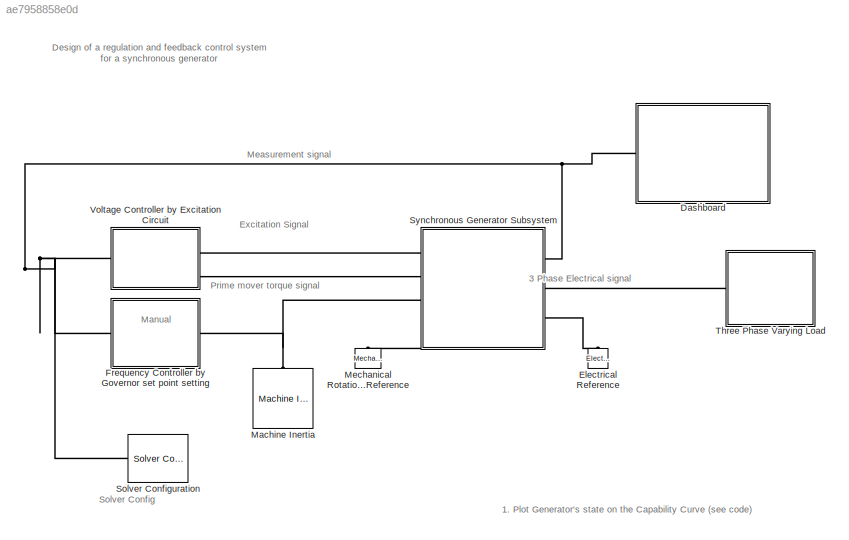
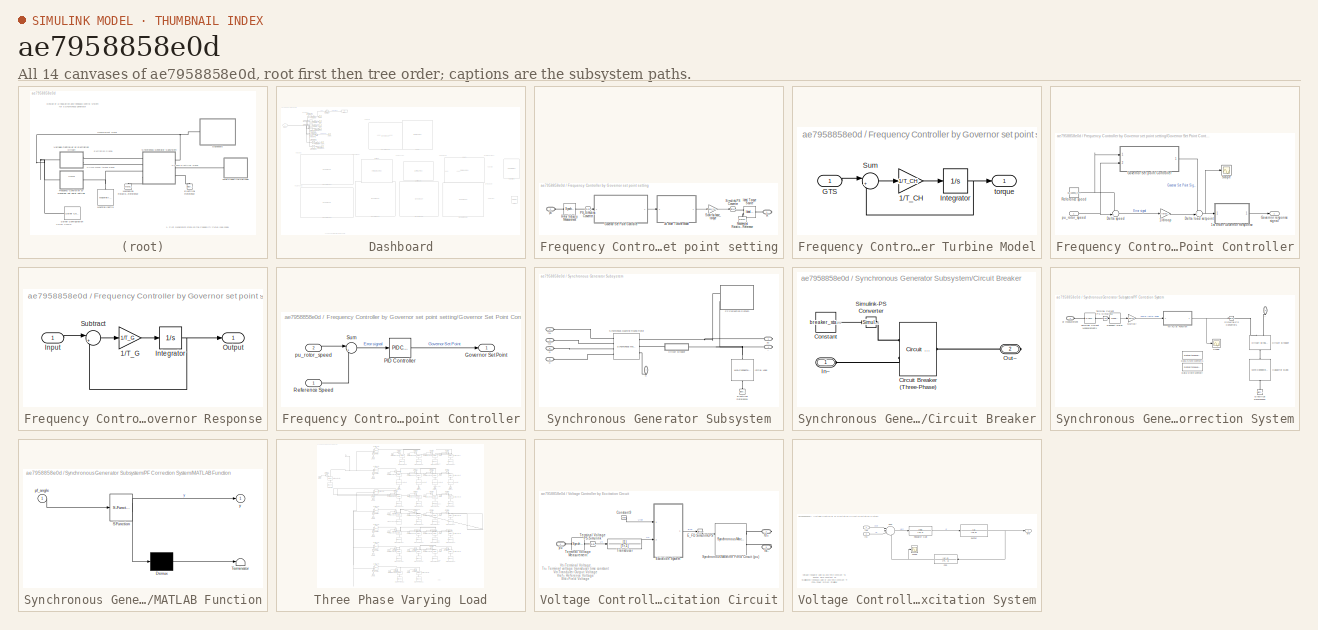
[diagram: thumbnail index - all 14 canvases of the model, root first then tree order]
MODEL slx_ae7958858e0d
KIND model
CONFIG AbsTol = auto
CONFIG EnableMultiTasking = off
CONFIG FixedStep = auto
CONFIG MaxStep = auto
CONFIG MinStep = auto
CONFIG RelTol = 1e-3
CONFIG SampleTimeConstraint = Unconstrained
CONFIG Solver = VariableStepAuto
CONFIG SolverName = VariableStepAuto
CONFIG StartTime = 0.0
CONFIG StopTime = 15
WORKSPACE source: mxarray member
WORKSPACE breaker_state: Simulink.Parameter (value not decoded)
WORKSPACE cap_state: Simulink.Parameter (value not decoded)
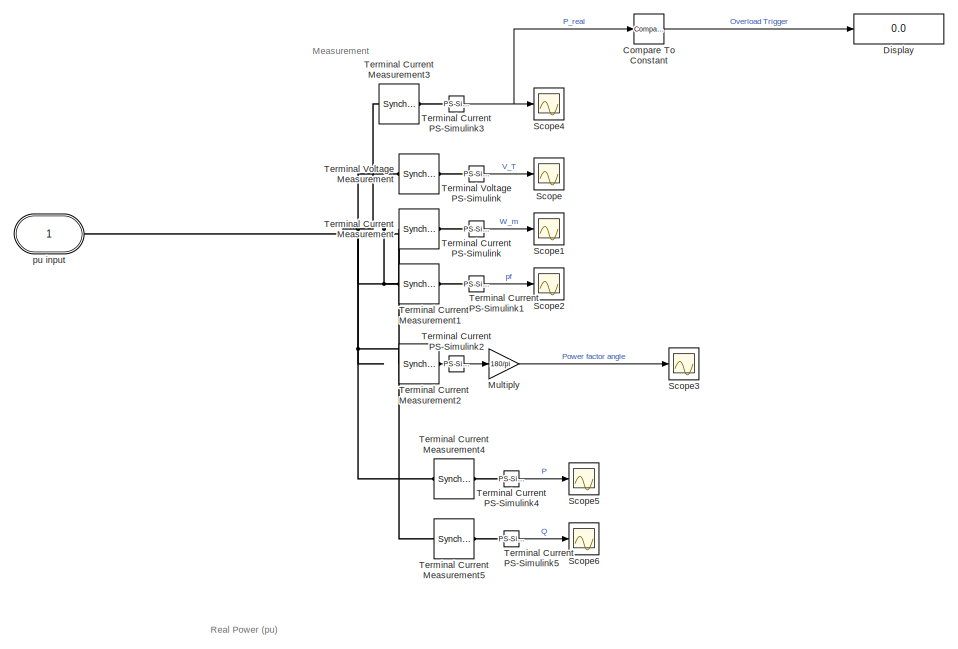
[diagram: Dashboard - part 1/6, top left region]
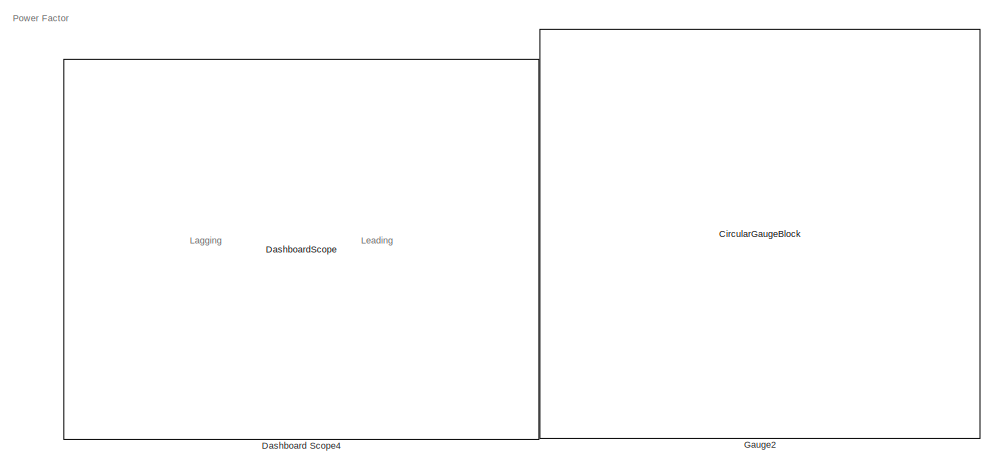
[diagram: Dashboard - part 2/6, top center region]
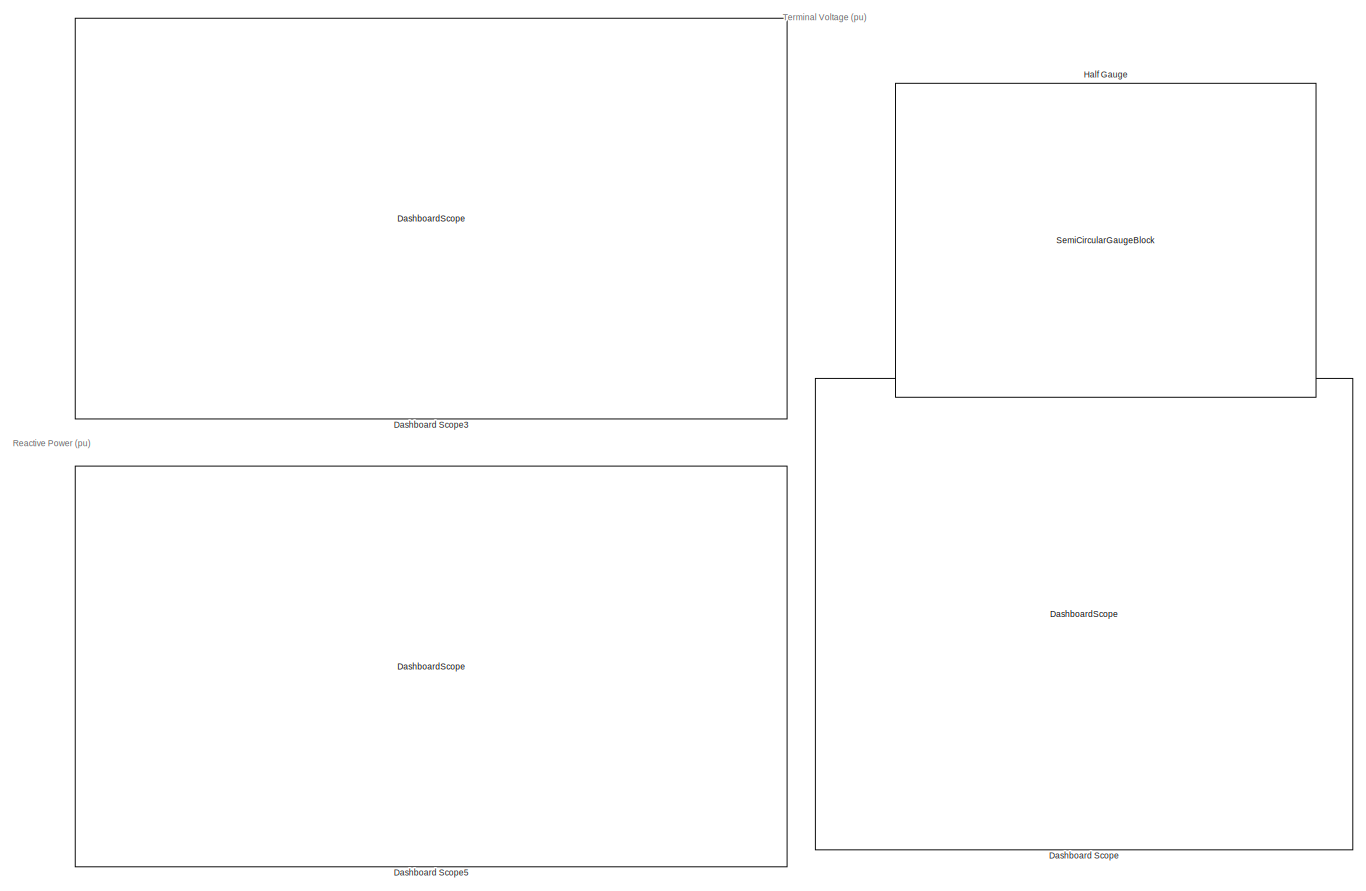
[diagram: Dashboard - part 3/6, middle left region]
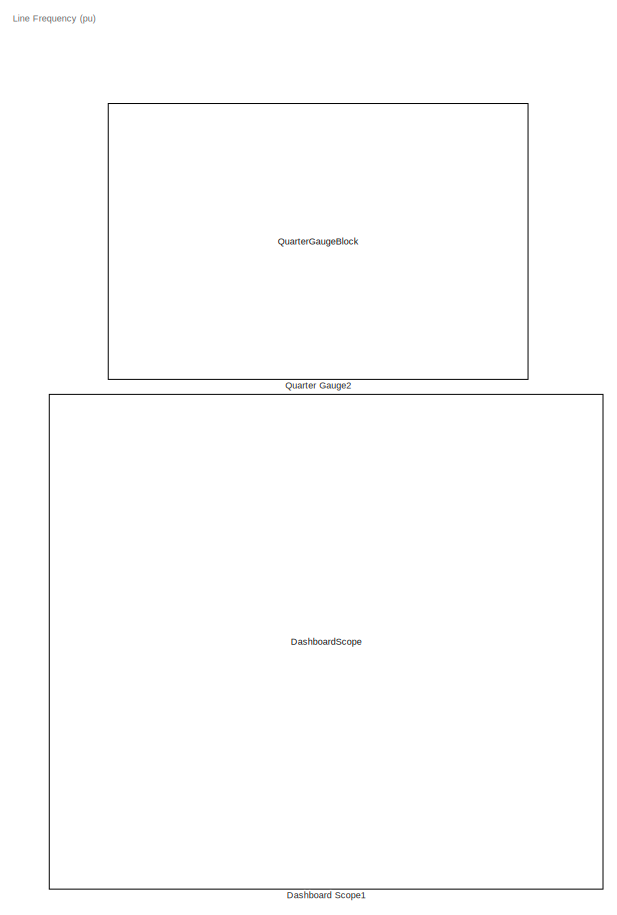
[diagram: Dashboard - part 4/6, central region]
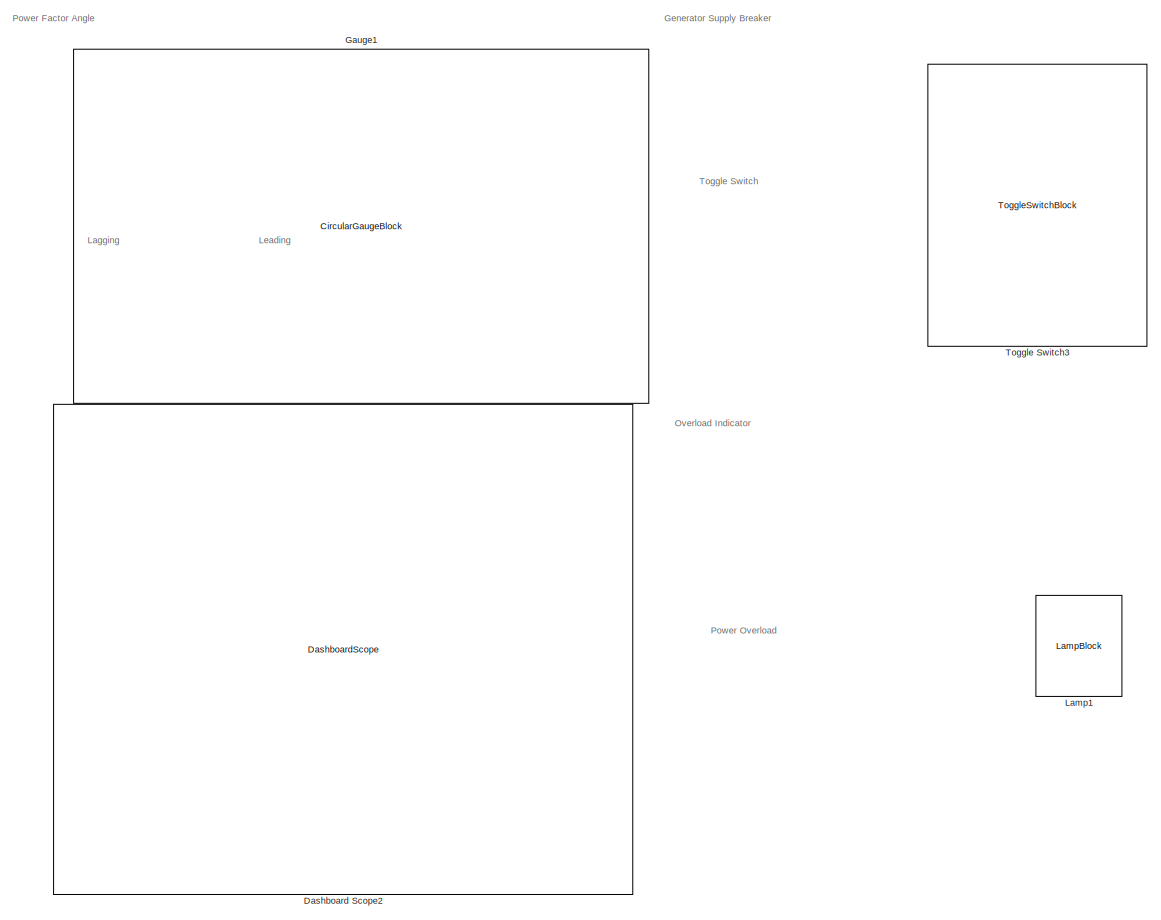
[diagram: Dashboard - part 5/6, middle right region]
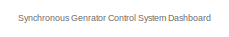
[diagram: Dashboard - part 6/6, bottom left region]
BLOCK [SubSystem] Dashboard
  Ports = [0, 0, 0, 0, 0, 1]
  RequestExecContextInheritance = off
BLOCK [Reference] Dashboard/Compare To Constant  REF=simulink/Logic and Bit
Operations/Compare
To Constant
  Ports = [1, 1]
  SourceBlock = simulink/Logic and Bit\nOperations/Compare\nTo Constant
  SourceProductBaseCode = SL
  SourceType = Compare To Constant
BLOCK [DashboardScope] Dashboard/Dashboard Scope
  LegendPosition = Hide
  ScaleAtStop = off
  Ymax = 2
  Ymin = 0
BLOCK [DashboardScope] Dashboard/Dashboard Scope1
  LegendPosition = Hide
  ScaleAtStop = off
  Ymax = 1.1
  Ymin = .9
BLOCK [DashboardScope] Dashboard/Dashboard Scope2
  LegendPosition = Hide
  ScaleAtStop = off
  Ymax = 90
  Ymin = -90
BLOCK [DashboardScope] Dashboard/Dashboard Scope3
  ScaleAtStop = off
  Ymax = 2
  Ymin = 0
BLOCK [DashboardScope] Dashboard/Dashboard Scope4
  LegendPosition = Hide
  ScaleAtStop = off
  Ymax = 1.2
  Ymin = 0
BLOCK [DashboardScope] Dashboard/Dashboard Scope5
  ScaleAtStop = off
  Ymax = 2
  Ymin = -2
BLOCK [Display] Dashboard/Display
  Decimation = 1
  Ports = [1]
BLOCK [CircularGaugeBlock] Dashboard/Gauge1
  LabelPosition = Hide
  ScaleMax = 90
  ScaleMin = -90
  TickInterval = 20
BLOCK [CircularGaugeBlock] Dashboard/Gauge2
  LabelPosition = Hide
  ScaleMax = 1
  TickInterval = 0.1
BLOCK [SemiCircularGaugeBlock] Dashboard/Half Gauge
  ScaleMax = 1.3
  ScaleMin = .5
  TickInterval = 0.1
BLOCK [LampBlock] Dashboard/Lamp1
  LabelPosition = Hide
BLOCK [Gain] Dashboard/Multiply
  Gain = 180/pi
BLOCK [QuarterGaugeBlock] Dashboard/Quarter Gauge2
  ScaleMax = 1.2
  ScaleMin = .8
  TickInterval = .1
BLOCK [Scope] Dashboard/Scope
  Floating = off
  NumInputPorts = 1
  Ports = [1]
  ScopeSpecificationString = Simulink.scopes.TimeScopeBlockCfg('CurrentConfiguration', extmgr.ConfigurationSet(extmgr.Configuration('Core','General UI',true),extmgr.Configuration('Core','Source UI',true),extmgr.Configuration('Sources','WiredSimulink',true,'DataLoggingVariableName','ScopeData7'),extmgr.Configuration('Visuals','Time Domain',true,'SerializedDisplays',{struct('MinYLimReal','0','MaxYLimReal','2','YLabelReal','','M...<+1404ch>
BLOCK [Scope] Dashboard/Scope1
  Floating = off
  NumInputPorts = 1
  Ports = [1]
  ScopeSpecificationString = Simulink.scopes.TimeScopeBlockCfg('CurrentConfiguration', extmgr.ConfigurationSet(extmgr.Configuration('Core','General UI',true),extmgr.Configuration('Core','Source UI',true),extmgr.Configuration('Sources','WiredSimulink',true,'DataLoggingVariableName','ScopeData8'),extmgr.Configuration('Visuals','Time Domain',true,'SerializedDisplays',{struct('MinYLimReal','0.94175','MaxYLimReal','1.02272','YLabe...<+1437ch>
BLOCK [Scope] Dashboard/Scope2
  Floating = off
  NumInputPorts = 1
  Ports = [1]
  ScopeSpecificationString = Simulink.scopes.TimeScopeBlockCfg('CurrentConfiguration', extmgr.ConfigurationSet(extmgr.Configuration('Core','General UI',true),extmgr.Configuration('Core','Source UI',true),extmgr.Configuration('Sources','WiredSimulink',true,'DataLoggingVariableName','ScopeData9'),extmgr.Configuration('Visuals','Time Domain',true,'SerializedDisplays',{struct('MinYLimReal','-1.14604','MaxYLimReal','1.23845','YLab...<+1766ch>
BLOCK [Scope] Dashboard/Scope3
  Floating = off
  NumInputPorts = 1
  Ports = [1]
  ScopeSpecificationString = Simulink.scopes.TimeScopeBlockCfg('CurrentConfiguration', extmgr.ConfigurationSet(extmgr.Configuration('Core','General UI',true),extmgr.Configuration('Core','Source UI',true),extmgr.Configuration('Sources','WiredSimulink',true,'DataLoggingVariableName','ScopeData10'),extmgr.Configuration('Visuals','Time Domain',true,'SerializedDisplays',{struct('MinYLimReal','-50.31945','MaxYLimReal','85.57606','Y...<+1792ch>
BLOCK [Scope] Dashboard/Scope4
  Floating = off
  NumInputPorts = 1
  Ports = [1]
  ScopeSpecificationString = Simulink.scopes.TimeScopeBlockCfg('CurrentConfiguration', extmgr.ConfigurationSet(extmgr.Configuration('Core','General UI',true),extmgr.Configuration('Core','Source UI',true),extmgr.Configuration('Sources','WiredSimulink',true,'DataLoggingVariableName','ScopeData11'),extmgr.Configuration('Visuals','Time Domain',true,'SerializedDisplays',{struct('MinYLimReal','-1.14942','MaxYLimReal','1.28712','YLa...<+1443ch>
BLOCK [Scope] Dashboard/Scope5
  Floating = off
  NumInputPorts = 1
  Ports = [1]
  ScopeSpecificationString = Simulink.scopes.TimeScopeBlockCfg('CurrentConfiguration', extmgr.ConfigurationSet(extmgr.Configuration('Core','General UI',true),extmgr.Configuration('Core','Source UI',true),extmgr.Configuration('Sources','WiredSimulink',true,'DataLoggingVariableName','ScopeData1'),extmgr.Configuration('Visuals','Time Domain',true,'SerializedDisplays',{struct('MinYLimReal','-1.14604','MaxYLimReal','1.23845','YLab...<+1766ch>
BLOCK [Scope] Dashboard/Scope6
  Floating = off
  NumInputPorts = 1
  Ports = [1]
  ScopeSpecificationString = Simulink.scopes.TimeScopeBlockCfg('CurrentConfiguration', extmgr.ConfigurationSet(extmgr.Configuration('Core','General UI',true),extmgr.Configuration('Core','Source UI',true),extmgr.Configuration('Sources','WiredSimulink',true,'DataLoggingVariableName','ScopeData2'),extmgr.Configuration('Visuals','Time Domain',true,'SerializedDisplays',{struct('MinYLimReal','-1.14604','MaxYLimReal','1.23845','YLab...<+1738ch>
BLOCK [Reference] Dashboard/Terminal Current Measurement  REF=ee_lib/Electromechanical/Synchronous/Synchronous Machine
Measurement
  Ports = [0, 0, 0, 0, 0, 1, 1]
  SourceBlock = ee_lib/Electromechanical/Synchronous/Synchronous Machine\nMeasurement
  SourceProductBaseCode = PS
  SourceType = Synchronous Machine\nMeasurement
BLOCK [Reference] Dashboard/Terminal Current Measurement1  REF=ee_lib/Electromechanical/Synchronous/Synchronous Machine
Measurement
  Ports = [0, 0, 0, 0, 0, 1, 1]
  SourceBlock = ee_lib/Electromechanical/Synchronous/Synchronous Machine\nMeasurement
  SourceProductBaseCode = PS
  SourceType = Synchronous Machine\nMeasurement
BLOCK [Reference] Dashboard/Terminal Current Measurement2  REF=ee_lib/Electromechanical/Synchronous/Synchronous Machine
Measurement
  Ports = [0, 0, 0, 0, 0, 1, 1]
  SourceBlock = ee_lib/Electromechanical/Synchronous/Synchronous Machine\nMeasurement
  SourceProductBaseCode = PS
  SourceType = Synchronous Machine\nMeasurement
BLOCK [Reference] Dashboard/Terminal Current Measurement3  REF=ee_lib/Electromechanical/Synchronous/Synchronous Machine
Measurement
  Ports = [0, 0, 0, 0, 0, 1, 1]
  SourceBlock = ee_lib/Electromechanical/Synchronous/Synchronous Machine\nMeasurement
  SourceProductBaseCode = PS
  SourceType = Synchronous Machine\nMeasurement
BLOCK [Reference] Dashboard/Terminal Current Measurement4  REF=ee_lib/Electromechanical/Synchronous/Synchronous Machine
Measurement
  Ports = [0, 0, 0, 0, 0, 1, 1]
  SourceBlock = ee_lib/Electromechanical/Synchronous/Synchronous Machine\nMeasurement
  SourceProductBaseCode = PS
  SourceType = Synchronous Machine\nMeasurement
BLOCK [Reference] Dashboard/Terminal Current Measurement5  REF=ee_lib/Electromechanical/Synchronous/Synchronous Machine
Measurement
  Ports = [0, 0, 0, 0, 0, 1, 1]
  SourceBlock = ee_lib/Electromechanical/Synchronous/Synchronous Machine\nMeasurement
  SourceProductBaseCode = PS
  SourceType = Synchronous Machine\nMeasurement
BLOCK [Reference] Dashboard/Terminal Current PS-Simulink  REF=nesl_utility/PS-Simulink
Converter
  Ports = [0, 1, 0, 0, 0, 1]
  SourceBlock = nesl_utility/PS-Simulink\nConverter
  SourceProductBaseCode = MT,SS
  SourceType = PS-Simulink\nConverter
BLOCK [Reference] Dashboard/Terminal Current PS-Simulink1  REF=nesl_utility/PS-Simulink
Converter
  Ports = [0, 1, 0, 0, 0, 1]
  SourceBlock = nesl_utility/PS-Simulink\nConverter
  SourceProductBaseCode = MT,SS
  SourceType = PS-Simulink\nConverter
BLOCK [Reference] Dashboard/Terminal Current PS-Simulink2  REF=nesl_utility/PS-Simulink
Converter
  Ports = [0, 1, 0, 0, 0, 1]
  SourceBlock = nesl_utility/PS-Simulink\nConverter
  SourceProductBaseCode = MT,SS
  SourceType = PS-Simulink\nConverter
BLOCK [Reference] Dashboard/Terminal Current PS-Simulink3  REF=nesl_utility/PS-Simulink
Converter
  Ports = [0, 1, 0, 0, 0, 1]
  SourceBlock = nesl_utility/PS-Simulink\nConverter
  SourceProductBaseCode = MT,SS
  SourceType = PS-Simulink\nConverter
BLOCK [Reference] Dashboard/Terminal Current PS-Simulink4  REF=nesl_utility/PS-Simulink
Converter
  Ports = [0, 1, 0, 0, 0, 1]
  SourceBlock = nesl_utility/PS-Simulink\nConverter
  SourceProductBaseCode = MT,SS
  SourceType = PS-Simulink\nConverter
BLOCK [Reference] Dashboard/Terminal Current PS-Simulink5  REF=nesl_utility/PS-Simulink
Converter
  Ports = [0, 1, 0, 0, 0, 1]
  SourceBlock = nesl_utility/PS-Simulink\nConverter
  SourceProductBaseCode = MT,SS
  SourceType = PS-Simulink\nConverter
BLOCK [Reference] Dashboard/Terminal Voltage Measurement  REF=ee_lib/Electromechanical/Synchronous/Synchronous Machine
Measurement
  Ports = [0, 0, 0, 0, 0, 1, 1]
  SourceBlock = ee_lib/Electromechanical/Synchronous/Synchronous Machine\nMeasurement
  SourceProductBaseCode = PS
  SourceType = Synchronous Machine\nMeasurement
BLOCK [Reference] Dashboard/Terminal Voltage PS-Simulink  REF=nesl_utility/PS-Simulink
Converter
  Ports = [0, 1, 0, 0, 0, 1]
  SourceBlock = nesl_utility/PS-Simulink\nConverter
  SourceProductBaseCode = MT,SS
  SourceType = PS-Simulink\nConverter
BLOCK [ToggleSwitchBlock] Dashboard/Toggle Switch3
  LabelPosition = Hide
BLOCK [PMIOPort] Dashboard/pu input
  Side = Left
BLOCK [Reference] Electrical Reference  REF=fl_lib/Electrical/Electrical Elements/Electrical Reference
  NameLocation = right
  Ports = [0, 0, 0, 0, 0, 1]
  SourceBlock = fl_lib/Electrical/Electrical Elements/Electrical Reference
  SourceProductBaseCode = MT,SS
  SourceType = Electrical Reference
BLOCK [SubSystem] Frequency Controller by Governor set point setting
  Ports = [0, 0, 0, 0, 0, 1, 1]
  RequestExecContextInheritance = off
BLOCK [SubSystem] Frequency Controller by Governor set point setting/1st order Turbine Model
  Ports = [1, 1]
  RequestExecContextInheritance = off
BLOCK [Gain] Frequency Controller by Governor set point setting/1st order Turbine Model/1//T_CH
  Gain = 1/T_CH
BLOCK [Inport] Frequency Controller by Governor set point setting/1st order Turbine Model/GTS
BLOCK [Integrator] Frequency Controller by Governor set point setting/1st order Turbine Model/Integrator
  InitialCondition = pu_torque0
  Ports = [1, 1]
BLOCK [Sum] Frequency Controller by Governor set point setting/1st order Turbine Model/Sum
  Inputs = |+-
  Ports = [2, 1]
BLOCK [Outport] Frequency Controller by Governor set point setting/1st order Turbine Model/torque
  VectorParamsAs1DForOutWhenUnconnected = off
BLOCK [SubSystem] Frequency Controller by Governor set point setting/Governor Set Point Controller
  Ports = [1, 1]
  RequestExecContextInheritance = off
BLOCK [Gain] Frequency Controller by Governor set point setting/Governor Set Point Controller/1//droop
  Gain = 1/(droop_percentage/100)
BLOCK [SubSystem] Frequency Controller by Governor set point setting/Governor Set Point Controller/1st order Governor Response
  Ports = [1, 1]
  RequestExecContextInheritance = off
BLOCK [Gain] Frequency Controller by Governor set point setting/Governor Set Point Controller/1st order Governor Response/1//T_G
  Gain = 1/T_G
BLOCK [Inport] Frequency Controller by Governor set point setting/Governor Set Point Controller/1st order Governor Response/Input
BLOCK [Integrator] Frequency Controller by Governor set point setting/Governor Set Point Controller/1st order Governor Response/Integrator
  InitialCondition = pu_torque0
  Ports = [1, 1]
BLOCK [Outport] Frequency Controller by Governor set point setting/Governor Set Point Controller/1st order Governor Response/Output
BLOCK [Sum] Frequency Controller by Governor set point setting/Governor Set Point Controller/1st order Governor Response/Subtract
  Inputs = |+-
  Ports = [2, 1]
BLOCK [Sum] Frequency Controller by Governor set point setting/Governor Set Point Controller/Delta load setpoint
  Inputs = +-|
  Ports = [2, 1]
BLOCK [Sum] Frequency Controller by Governor set point setting/Governor Set Point Controller/Delta speed
  Inputs = -+|
  Ports = [2, 1]
BLOCK [SubSystem] Frequency Controller by Governor set point setting/Governor Set Point Controller/Governor Set point Controller
  Ports = [2, 1]
  RequestExecContextInheritance = off
BLOCK [Outport] Frequency Controller by Governor set point setting/Governor Set Point Controller/Governor Set point Controller/Governor Set Point
BLOCK [Reference] Frequency Controller by Governor set point setting/Governor Set Point Controller/Governor Set point Controller/PID Controller  REF=simulink/Continuous/PID Controller
  Ports = [1, 1]
  SourceBlock = simulink/Continuous/PID Controller
  SourceProductBaseCode = SL
  SourceType = PID 1dof
BLOCK [Inport] Frequency Controller by Governor set point setting/Governor Set Point Controller/Governor Set point Controller/Reference Speed
BLOCK [Sum] Frequency Controller by Governor set point setting/Governor Set Point Controller/Governor Set point Controller/Sum
  Inputs = |+-
  Ports = [2, 1]
BLOCK [Inport] Frequency Controller by Governor set point setting/Governor Set Point Controller/Governor Set point Controller/pu_rotor_speed
  Port = 2
BLOCK [Outport] Frequency Controller by Governor set point setting/Governor Set Point Controller/Governor response signal
  VectorParamsAs1DForOutWhenUnconnected = off
BLOCK [Constant] Frequency Controller by Governor set point setting/Governor Set Point Controller/Reference speed
  Value = pu_speed_reference
BLOCK [Scope] Frequency Controller by Governor set point setting/Governor Set Point Controller/Scope
  Floating = off
  NumInputPorts = 1
  Ports = [1]
  ScopeSpecificationString = Simulink.scopes.TimeScopeBlockCfg('CurrentConfiguration', extmgr.ConfigurationSet(extmgr.Configuration('Core','General UI',true),extmgr.Configuration('Core','Source UI',true),extmgr.Configuration('Sources','WiredSimulink',true),extmgr.Configuration('Visuals','Time Domain',true,'SerializedDisplays',{struct('MinYLimReal','-561.14544','MaxYLimReal','68.81684','YLabelReal','','MinYLimMag',' 0.00000','...<+1384ch>
BLOCK [Inport] Frequency Controller by Governor set point setting/Governor Set Point Controller/pu_rotor_speed
BLOCK [Reference] Frequency Controller by Governor set point setting/Ideal Torque Source  REF=fl_lib/Mechanical/Mechanical Sources/Ideal Torque Source
  Ports = [0, 0, 0, 0, 0, 1, 2]
  SourceBlock = fl_lib/Mechanical/Mechanical Sources/Ideal Torque Source
  SourceProductBaseCode = MT,SS
  SourceType = Ideal Torque Source
BLOCK [Reference] Frequency Controller by Governor set point setting/Mechanical Rotational Reference  REF=fl_lib/Mechanical/Rotational Elements/Mechanical
Rotational Reference
  NameLocation = right
  Ports = [0, 0, 0, 0, 0, 1]
  SourceBlock = fl_lib/Mechanical/Rotational Elements/Mechanical\nRotational Reference
  SourceProductBaseCode = MT,SS
  SourceType = Mechanical\nRotational Reference
BLOCK [Reference] Frequency Controller by Governor set point setting/PS-Simulink Converter  REF=nesl_utility/PS-Simulink
Converter
  Ports = [0, 1, 0, 0, 0, 1]
  SourceBlock = nesl_utility/PS-Simulink\nConverter
  SourceProductBaseCode = MT,SS
  SourceType = PS-Simulink\nConverter
BLOCK [PMIOPort] Frequency Controller by Governor set point setting/R
  Side = Right
BLOCK [Reference] Frequency Controller by Governor set point setting/Rotor Velocity Measurement  REF=ee_lib/Electromechanical/Synchronous/Synchronous Machine
Measurement
  Ports = [0, 0, 0, 0, 0, 1, 1]
  SourceBlock = ee_lib/Electromechanical/Synchronous/Synchronous Machine\nMeasurement
  SourceProductBaseCode = PS
  SourceType = Synchronous Machine\nMeasurement
BLOCK [Gain] Frequency Controller by Governor set point setting/Scale by base_torque
  Gain = base_torque
BLOCK [Reference] Frequency Controller by Governor set point setting/Simulink-PS Converter  REF=nesl_utility/Simulink-PS
Converter
  Ports = [1, 0, 0, 0, 0, 0, 1]
  SourceBlock = nesl_utility/Simulink-PS\nConverter
  SourceProductBaseCode = MT,SS
  SourceType = Simulink-PS\nConverter
BLOCK [PMIOPort] Frequency Controller by Governor set point setting/pu
  Port = 2
  Side = Left
BLOCK [Reference] Machine Inertia  REF=ee_lib/Electromechanical/Mechanical/Machine
Inertia
  NameLocation = right
  Ports = [0, 0, 0, 0, 0, 1]
  SourceBlock = ee_lib/Electromechanical/Mechanical/Machine\nInertia
  SourceProductBaseCode = PS
  SourceType = Machine\nInertia
BLOCK [Reference] Mechanical Rotational Reference  REF=fl_lib/Mechanical/Rotational Elements/Mechanical
Rotational Reference
  NameLocation = right
  Ports = [0, 0, 0, 0, 0, 1]
  SourceBlock = fl_lib/Mechanical/Rotational Elements/Mechanical\nRotational Reference
  SourceProductBaseCode = MT,SS
  SourceType = Mechanical\nRotational Reference
BLOCK [Reference] Solver Configuration  REF=nesl_utility/Solver
Configuration
  NameLocation = top
  Ports = [0, 0, 0, 0, 0, 0, 1]
  SourceBlock = nesl_utility/Solver\nConfiguration
  SourceProductBaseCode = MT,SS
  SourceType = Solver\nConfiguration
BLOCK [SubSystem] Synchronous Generator Subsystem
  Ports = [0, 0, 0, 0, 0, 4, 3]
  RequestExecContextInheritance = off
BLOCK [PMIOPort] Synchronous Generator Subsystem/C
  Port = 6
  Side = Left
BLOCK [SubSystem] Synchronous Generator Subsystem/Circuit Breaker
  Ports = [0, 0, 0, 0, 0, 1, 1]
  RequestExecContextInheritance = off
BLOCK [Reference] Synchronous Generator Subsystem/Circuit Breaker/Circuit Breaker (Three-Phase)  REF=ee_lib/Switches & Breakers/Circuit Breaker
(Three-Phase)
  Ports = [0, 0, 0, 0, 0, 2, 1]
  SourceBlock = ee_lib/Switches & Breakers/Circuit Breaker\n(Three-Phase)
  SourceProductBaseCode = PS
  SourceType = Circuit Breaker\n(Three-Phase)
BLOCK [Constant] Synchronous Generator Subsystem/Circuit Breaker/Constant
  Value = breaker_state
BLOCK [PMIOPort] Synchronous Generator Subsystem/Circuit Breaker/In~
  Side = Left
BLOCK [PMIOPort] Synchronous Generator Subsystem/Circuit Breaker/Out~
  Port = 2
  Side = Right
BLOCK [Reference] Synchronous Generator Subsystem/Circuit Breaker/Simulink-PS Converter  REF=nesl_utility/Simulink-PS
Converter
  Ports = [1, 0, 0, 0, 0, 0, 1]
  SourceBlock = nesl_utility/Simulink-PS\nConverter
  SourceProductBaseCode = SS
  SourceType = Simulink-PS\nConverter
BLOCK [Reference] Synchronous Generator Subsystem/Electrical Reference1  REF=fl_lib/Electrical/Electrical Elements/Electrical Reference
  NameLocation = right
  Ports = [0, 0, 0, 0, 0, 1]
  SourceBlock = fl_lib/Electrical/Electrical Elements/Electrical Reference
  SourceProductBaseCode = MT,SS
  SourceType = Electrical Reference
BLOCK [Reference] Synchronous Generator Subsystem/Initial Load  REF=ee_lib/Passive/RLC Assemblies/Wye-Connected Load
  NameLocation = left
  Ports = [0, 0, 0, 0, 0, 1, 1]
  SourceBlock = ee_lib/Passive/RLC Assemblies/Wye-Connected Load
  SourceProductBaseCode = PS
  SourceType = Wye-Connected Load
BLOCK [SubSystem] Synchronous Generator Subsystem/PF Correction System
  Ports = [0, 0, 0, 0, 0, 2]
  RequestExecContextInheritance = off
BLOCK [Reference] Synchronous Generator Subsystem/PF Correction System/Capacitor Bank  REF=ee_lib/Passive/RLC Assemblies/Wye-Connected Load
  NameLocation = left
  Ports = [0, 0, 0, 0, 0, 1, 1]
  SourceBlock = ee_lib/Passive/RLC Assemblies/Wye-Connected Load
  SourceProductBaseCode = PS
  SourceType = Wye-Connected Load
BLOCK [Reference] Synchronous Generator Subsystem/PF Correction System/Circuit Breaker  REF=ee_lib/Switches & Breakers/Circuit Breaker
(Three-Phase)
  NameLocation = left
  Ports = [0, 0, 0, 0, 0, 2, 1]
  SourceBlock = ee_lib/Switches & Breakers/Circuit Breaker\n(Three-Phase)
  SourceProductBaseCode = PS
  SourceType = Circuit Breaker\n(Three-Phase)
BLOCK [DataStoreMemory] Synchronous Generator Subsystem/PF Correction System/Data Store Memory
  DataStoreName = cap_state
  InitialValue = 1
  OutDataTypeStr = double
  ShowAdditionalParam = off
  SignalType = real
BLOCK [DataStoreMemory] Synchronous Generator Subsystem/PF Correction System/Data Store Memory1
  DataStoreName = cut_off_pf
  InitialValue = 0.9
  OutDataTypeStr = double
  ShowAdditionalParam = off
  SignalType = real
BLOCK [Reference] Synchronous Generator Subsystem/PF Correction System/Electrical Reference3  REF=fl_lib/Electrical/Electrical Elements/Electrical Reference
  NameLocation = right
  Ports = [0, 0, 0, 0, 0, 1]
  SourceBlock = fl_lib/Electrical/Electrical Elements/Electrical Reference
  SourceProductBaseCode = MT,SS
  SourceType = Electrical Reference
BLOCK [SubSystem] Synchronous Generator Subsystem/PF Correction System/MATLAB Function
  ErrorFcn = Stateflow.Translate.translate
  PermitHierarchicalResolution = ExplicitOnly
  Ports = [1, 1]
  RequestExecContextInheritance = off
  SFBlockType = MATLAB Function
  TreatAsAtomicUnit = on
BLOCK [Demux] Synchronous Generator Subsystem/PF Correction System/MATLAB Function/ Demux 
  Outputs = 1
  Ports = [1, 1]
BLOCK [S-Function] Synchronous Generator Subsystem/PF Correction System/MATLAB Function/ SFunction 
  EnableBusSupport = on
  FunctionName = sf_sfun
  PortCounts = [1 2]
  Ports = [1, 2]
  SFcnIsStateOwnerBlock = off
  SFunctionDeploymentMode = off
  Tag = Stateflow S-Function 2
BLOCK [Terminator] Synchronous Generator Subsystem/PF Correction System/MATLAB Function/ Terminator 
BLOCK [Inport] Synchronous Generator Subsystem/PF Correction System/MATLAB Function/pf_angle
BLOCK [Outport] Synchronous Generator Subsystem/PF Correction System/MATLAB Function/y
BLOCK [Gain] Synchronous Generator Subsystem/PF Correction System/Multiply
  Gain = 180/pi
BLOCK [Scope] Synchronous Generator Subsystem/PF Correction System/Scope
  Floating = off
  NumInputPorts = 1
  Ports = [1]
  ScopeSpecificationString = Simulink.scopes.TimeScopeBlockCfg('CurrentConfiguration', extmgr.ConfigurationSet(extmgr.Configuration('Core','General UI',true),extmgr.Configuration('Core','Source UI',true),extmgr.Configuration('Sources','WiredSimulink',true,'DataLoggingVariableName','ScopeData1'),extmgr.Configuration('Visuals','Time Domain',true,'SerializedDisplays',{struct('MinYLimReal','0.9','MaxYLimReal','1.1','YLabelReal','...<+1369ch>
BLOCK [Reference] Synchronous Generator Subsystem/PF Correction System/Simulink-PS Converter1  REF=nesl_utility/Simulink-PS
Converter
  NameLocation = top
  Ports = [1, 0, 0, 0, 0, 0, 1]
  SourceBlock = nesl_utility/Simulink-PS\nConverter
  SourceProductBaseCode = MT,SS
  SourceType = Simulink-PS\nConverter
BLOCK [Reference] Synchronous Generator Subsystem/PF Correction System/Terminal Current Measurement4  REF=ee_lib/Electromechanical/Synchronous/Synchronous Machine
Measurement
  Ports = [0, 0, 0, 0, 0, 1, 1]
  SourceBlock = ee_lib/Electromechanical/Synchronous/Synchronous Machine\nMeasurement
  SourceProductBaseCode = PS
  SourceType = Synchronous Machine\nMeasurement
BLOCK [Reference] Synchronous Generator Subsystem/PF Correction System/Terminal Current PS-Simulink2  REF=nesl_utility/PS-Simulink
Converter
  Ports = [0, 1, 0, 0, 0, 1]
  SourceBlock = nesl_utility/PS-Simulink\nConverter
  SourceProductBaseCode = MT,SS
  SourceType = PS-Simulink\nConverter
BLOCK [TransportDelay] Synchronous Generator Subsystem/PF Correction System/Transport Delay
  DelayTime = transport_delay
  Ports = [1, 1]
BLOCK [PMIOPort] Synchronous Generator Subsystem/PF Correction System/pf measurement
  Side = Left
BLOCK [PMIOPort] Synchronous Generator Subsystem/PF Correction System/~
  NameLocation = left
  Port = 2
  Side = Left
BLOCK [PMIOPort] Synchronous Generator Subsystem/R
  Port = 5
  Side = Left
BLOCK [Reference] Synchronous Generator Subsystem/Synchronous Machine Round Rotor  REF=ee_lib/Electromechanical/Synchronous/Synchronous Machine
Round Rotor
  Ports = [0, 0, 0, 0, 0, 4, 3]
  SourceBlock = ee_lib/Electromechanical/Synchronous/Synchronous Machine\nRound Rotor
  SourceProductBaseCode = PS
  SourceType = Synchronous Machine\nRound Rotor
BLOCK [PMIOPort] Synchronous Generator Subsystem/fd+
  Port = 2
  Side = Left
BLOCK [PMIOPort] Synchronous Generator Subsystem/fd-
  Port = 3
  Side = Left
BLOCK [PMIOPort] Synchronous Generator Subsystem/n
  NameLocation = left
  Port = 7
  Side = Right
BLOCK [PMIOPort] Synchronous Generator Subsystem/pu
  NameLocation = top
  Side = Right
BLOCK [PMIOPort] Synchronous Generator Subsystem/~
  Port = 4
  Side = Right
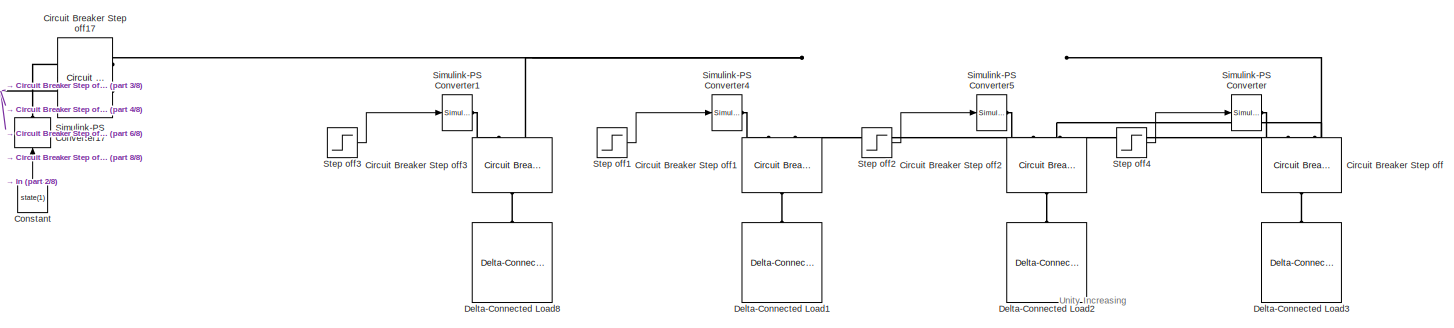
[diagram: Three Phase Varying Load - part 1/8, top center region]
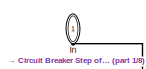
[diagram: Three Phase Varying Load - part 2/8, top left region]
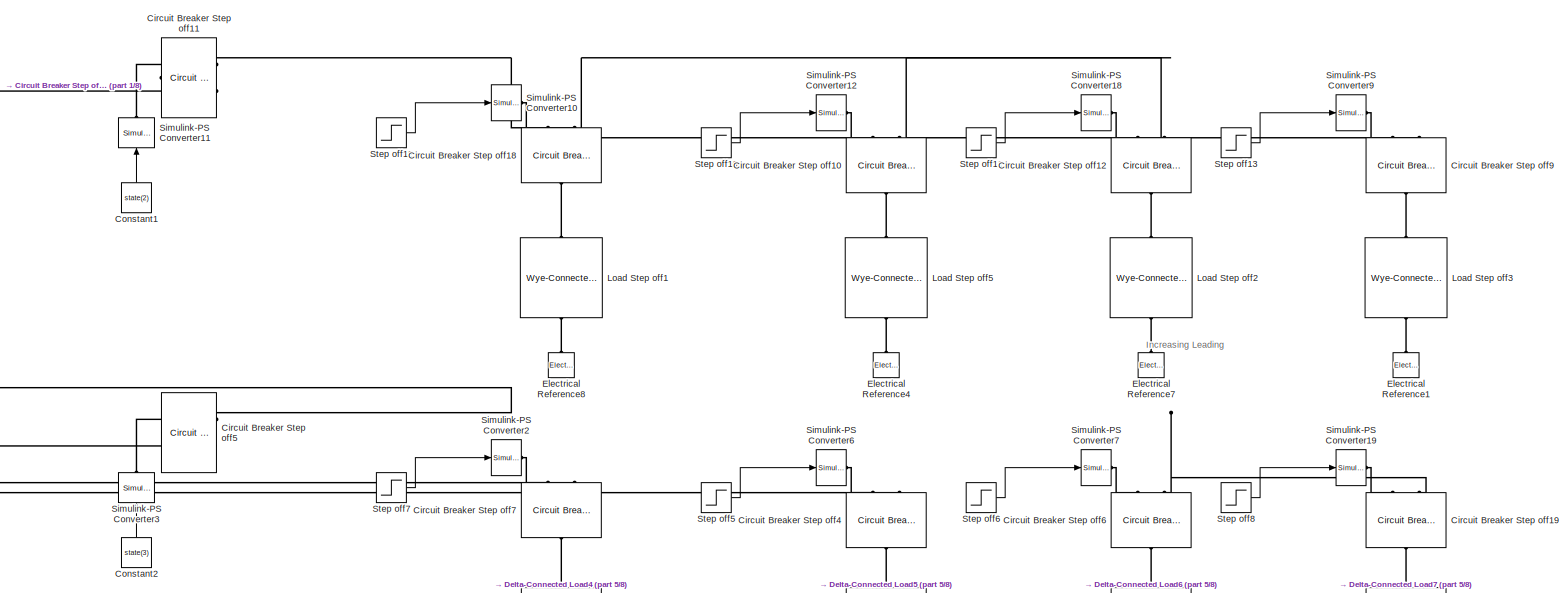
[diagram: Three Phase Varying Load - part 3/8, top center region]
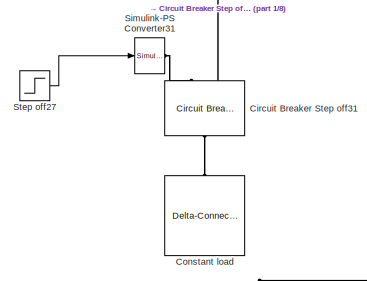
[diagram: Three Phase Varying Load - part 4/8, top left region]
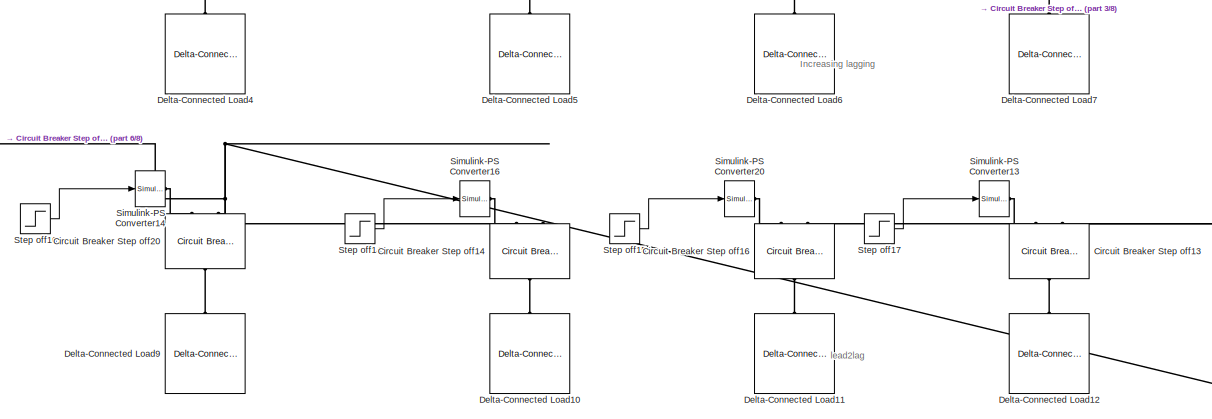
[diagram: Three Phase Varying Load - part 5/8, central region]
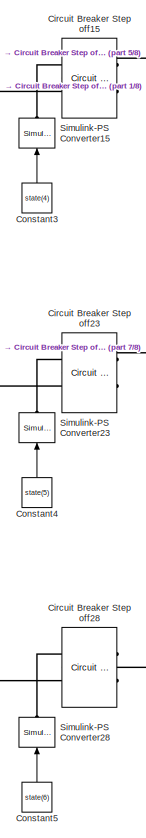
[diagram: Three Phase Varying Load - part 6/8, central region]
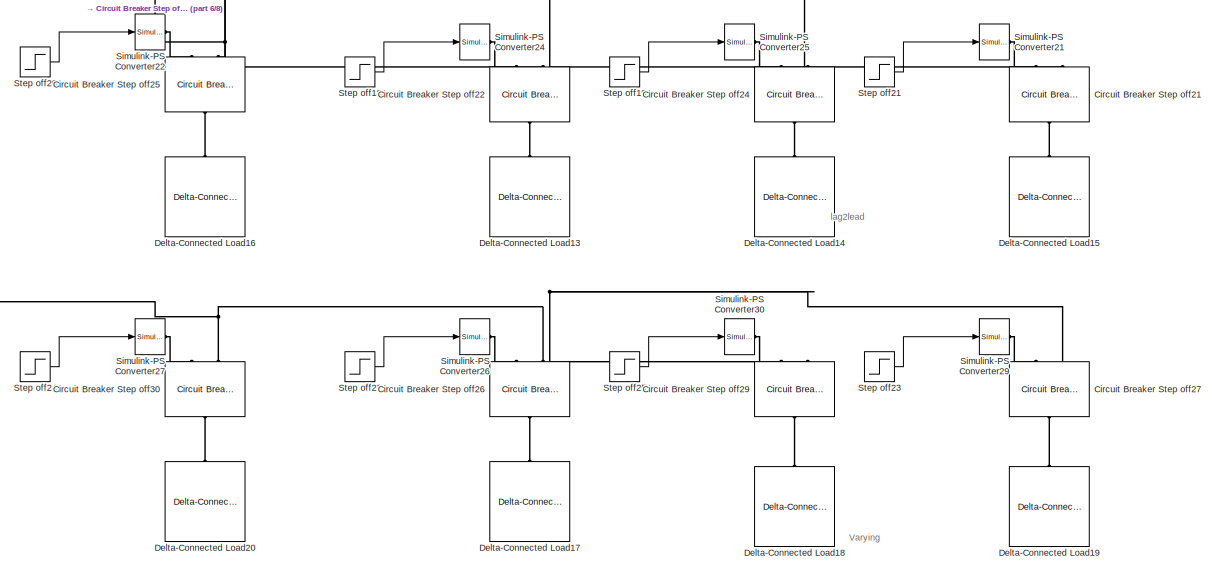
[diagram: Three Phase Varying Load - part 7/8, bottom center region]
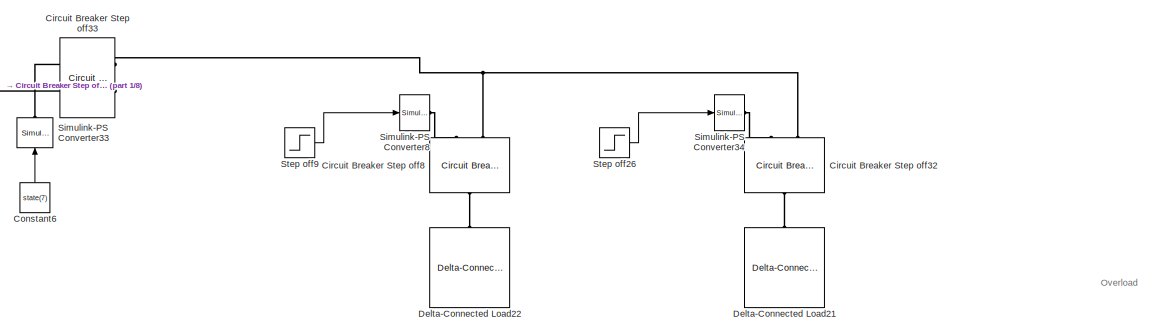
[diagram: Three Phase Varying Load - part 8/8, bottom center region]
BLOCK [SubSystem] Three Phase Varying Load
  Ports = [0, 0, 0, 0, 0, 1]
  RequestExecContextInheritance = off
BLOCK [Reference] Three Phase Varying Load/Circuit Breaker Step off  REF=ee_lib/Switches & Breakers/Circuit Breaker
(Three-Phase)
  NameLocation = left
  Ports = [0, 0, 0, 0, 0, 2, 1]
  SourceBlock = ee_lib/Switches & Breakers/Circuit Breaker\n(Three-Phase)
  SourceProductBaseCode = PS
  SourceType = Circuit Breaker\n(Three-Phase)
BLOCK [Reference] Three Phase Varying Load/Circuit Breaker Step off1  REF=ee_lib/Switches & Breakers/Circuit Breaker
(Three-Phase)
  NameLocation = left
  Ports = [0, 0, 0, 0, 0, 2, 1]
  SourceBlock = ee_lib/Switches & Breakers/Circuit Breaker\n(Three-Phase)
  SourceProductBaseCode = PS
  SourceType = Circuit Breaker\n(Three-Phase)
BLOCK [Reference] Three Phase Varying Load/Circuit Breaker Step off10  REF=ee_lib/Switches & Breakers/Circuit Breaker
(Three-Phase)
  NameLocation = left
  Ports = [0, 0, 0, 0, 0, 2, 1]
  SourceBlock = ee_lib/Switches & Breakers/Circuit Breaker\n(Three-Phase)
  SourceProductBaseCode = PS
  SourceType = Circuit Breaker\n(Three-Phase)
BLOCK [Reference] Three Phase Varying Load/Circuit Breaker Step off11  REF=ee_lib/Switches & Breakers/Circuit Breaker
(Three-Phase)
  Ports = [0, 0, 0, 0, 0, 2, 1]
  SourceBlock = ee_lib/Switches & Breakers/Circuit Breaker\n(Three-Phase)
  SourceProductBaseCode = PS
  SourceType = Circuit Breaker\n(Three-Phase)
BLOCK [Reference] Three Phase Varying Load/Circuit Breaker Step off12  REF=ee_lib/Switches & Breakers/Circuit Breaker
(Three-Phase)
  NameLocation = left
  Ports = [0, 0, 0, 0, 0, 2, 1]
  SourceBlock = ee_lib/Switches & Breakers/Circuit Breaker\n(Three-Phase)
  SourceProductBaseCode = PS
  SourceType = Circuit Breaker\n(Three-Phase)
BLOCK [Reference] Three Phase Varying Load/Circuit Breaker Step off13  REF=ee_lib/Switches & Breakers/Circuit Breaker
(Three-Phase)
  NameLocation = left
  Ports = [0, 0, 0, 0, 0, 2, 1]
  SourceBlock = ee_lib/Switches & Breakers/Circuit Breaker\n(Three-Phase)
  SourceProductBaseCode = PS
  SourceType = Circuit Breaker\n(Three-Phase)
BLOCK [Reference] Three Phase Varying Load/Circuit Breaker Step off14  REF=ee_lib/Switches & Breakers/Circuit Breaker
(Three-Phase)
  NameLocation = left
  Ports = [0, 0, 0, 0, 0, 2, 1]
  SourceBlock = ee_lib/Switches & Breakers/Circuit Breaker\n(Three-Phase)
  SourceProductBaseCode = PS
  SourceType = Circuit Breaker\n(Three-Phase)
BLOCK [Reference] Three Phase Varying Load/Circuit Breaker Step off15  REF=ee_lib/Switches & Breakers/Circuit Breaker
(Three-Phase)
  Ports = [0, 0, 0, 0, 0, 2, 1]
  SourceBlock = ee_lib/Switches & Breakers/Circuit Breaker\n(Three-Phase)
  SourceProductBaseCode = PS
  SourceType = Circuit Breaker\n(Three-Phase)
BLOCK [Reference] Three Phase Varying Load/Circuit Breaker Step off16  REF=ee_lib/Switches & Breakers/Circuit Breaker
(Three-Phase)
  NameLocation = left
  Ports = [0, 0, 0, 0, 0, 2, 1]
  SourceBlock = ee_lib/Switches & Breakers/Circuit Breaker\n(Three-Phase)
  SourceProductBaseCode = PS
  SourceType = Circuit Breaker\n(Three-Phase)
BLOCK [Reference] Three Phase Varying Load/Circuit Breaker Step off17  REF=ee_lib/Switches & Breakers/Circuit Breaker
(Three-Phase)
  Ports = [0, 0, 0, 0, 0, 2, 1]
  SourceBlock = ee_lib/Switches & Breakers/Circuit Breaker\n(Three-Phase)
  SourceProductBaseCode = PS
  SourceType = Circuit Breaker\n(Three-Phase)
BLOCK [Reference] Three Phase Varying Load/Circuit Breaker Step off18  REF=ee_lib/Switches & Breakers/Circuit Breaker
(Three-Phase)
  NameLocation = left
  Ports = [0, 0, 0, 0, 0, 2, 1]
  SourceBlock = ee_lib/Switches & Breakers/Circuit Breaker\n(Three-Phase)
  SourceProductBaseCode = PS
  SourceType = Circuit Breaker\n(Three-Phase)
BLOCK [Reference] Three Phase Varying Load/Circuit Breaker Step off19  REF=ee_lib/Switches & Breakers/Circuit Breaker
(Three-Phase)
  NameLocation = left
  Ports = [0, 0, 0, 0, 0, 2, 1]
  SourceBlock = ee_lib/Switches & Breakers/Circuit Breaker\n(Three-Phase)
  SourceProductBaseCode = PS
  SourceType = Circuit Breaker\n(Three-Phase)
BLOCK [Reference] Three Phase Varying Load/Circuit Breaker Step off2  REF=ee_lib/Switches & Breakers/Circuit Breaker
(Three-Phase)
  NameLocation = left
  Ports = [0, 0, 0, 0, 0, 2, 1]
  SourceBlock = ee_lib/Switches & Breakers/Circuit Breaker\n(Three-Phase)
  SourceProductBaseCode = PS
  SourceType = Circuit Breaker\n(Three-Phase)
BLOCK [Reference] Three Phase Varying Load/Circuit Breaker Step off20  REF=ee_lib/Switches & Breakers/Circuit Breaker
(Three-Phase)
  NameLocation = left
  Ports = [0, 0, 0, 0, 0, 2, 1]
  SourceBlock = ee_lib/Switches & Breakers/Circuit Breaker\n(Three-Phase)
  SourceProductBaseCode = PS
  SourceType = Circuit Breaker\n(Three-Phase)
BLOCK [Reference] Three Phase Varying Load/Circuit Breaker Step off21  REF=ee_lib/Switches & Breakers/Circuit Breaker
(Three-Phase)
  NameLocation = left
  Ports = [0, 0, 0, 0, 0, 2, 1]
  SourceBlock = ee_lib/Switches & Breakers/Circuit Breaker\n(Three-Phase)
  SourceProductBaseCode = PS
  SourceType = Circuit Breaker\n(Three-Phase)
BLOCK [Reference] Three Phase Varying Load/Circuit Breaker Step off22  REF=ee_lib/Switches & Breakers/Circuit Breaker
(Three-Phase)
  NameLocation = left
  Ports = [0, 0, 0, 0, 0, 2, 1]
  SourceBlock = ee_lib/Switches & Breakers/Circuit Breaker\n(Three-Phase)
  SourceProductBaseCode = PS
  SourceType = Circuit Breaker\n(Three-Phase)
BLOCK [Reference] Three Phase Varying Load/Circuit Breaker Step off23  REF=ee_lib/Switches & Breakers/Circuit Breaker
(Three-Phase)
  Ports = [0, 0, 0, 0, 0, 2, 1]
  SourceBlock = ee_lib/Switches & Breakers/Circuit Breaker\n(Three-Phase)
  SourceProductBaseCode = PS
  SourceType = Circuit Breaker\n(Three-Phase)
BLOCK [Reference] Three Phase Varying Load/Circuit Breaker Step off24  REF=ee_lib/Switches & Breakers/Circuit Breaker
(Three-Phase)
  NameLocation = left
  Ports = [0, 0, 0, 0, 0, 2, 1]
  SourceBlock = ee_lib/Switches & Breakers/Circuit Breaker\n(Three-Phase)
  SourceProductBaseCode = PS
  SourceType = Circuit Breaker\n(Three-Phase)
BLOCK [Reference] Three Phase Varying Load/Circuit Breaker Step off25  REF=ee_lib/Switches & Breakers/Circuit Breaker
(Three-Phase)
  NameLocation = left
  Ports = [0, 0, 0, 0, 0, 2, 1]
  SourceBlock = ee_lib/Switches & Breakers/Circuit Breaker\n(Three-Phase)
  SourceProductBaseCode = PS
  SourceType = Circuit Breaker\n(Three-Phase)
BLOCK [Reference] Three Phase Varying Load/Circuit Breaker Step off26  REF=ee_lib/Switches & Breakers/Circuit Breaker
(Three-Phase)
  NameLocation = left
  Ports = [0, 0, 0, 0, 0, 2, 1]
  SourceBlock = ee_lib/Switches & Breakers/Circuit Breaker\n(Three-Phase)
  SourceProductBaseCode = PS
  SourceType = Circuit Breaker\n(Three-Phase)
BLOCK [Reference] Three Phase Varying Load/Circuit Breaker Step off27  REF=ee_lib/Switches & Breakers/Circuit Breaker
(Three-Phase)
  NameLocation = left
  Ports = [0, 0, 0, 0, 0, 2, 1]
  SourceBlock = ee_lib/Switches & Breakers/Circuit Breaker\n(Three-Phase)
  SourceProductBaseCode = PS
  SourceType = Circuit Breaker\n(Three-Phase)
BLOCK [Reference] Three Phase Varying Load/Circuit Breaker Step off28  REF=ee_lib/Switches & Breakers/Circuit Breaker
(Three-Phase)
  Ports = [0, 0, 0, 0, 0, 2, 1]
  SourceBlock = ee_lib/Switches & Breakers/Circuit Breaker\n(Three-Phase)
  SourceProductBaseCode = PS
  SourceType = Circuit Breaker\n(Three-Phase)
BLOCK [Reference] Three Phase Varying Load/Circuit Breaker Step off29  REF=ee_lib/Switches & Breakers/Circuit Breaker
(Three-Phase)
  NameLocation = left
  Ports = [0, 0, 0, 0, 0, 2, 1]
  SourceBlock = ee_lib/Switches & Breakers/Circuit Breaker\n(Three-Phase)
  SourceProductBaseCode = PS
  SourceType = Circuit Breaker\n(Three-Phase)
BLOCK [Reference] Three Phase Varying Load/Circuit Breaker Step off3  REF=ee_lib/Switches & Breakers/Circuit Breaker
(Three-Phase)
  NameLocation = left
  Ports = [0, 0, 0, 0, 0, 2, 1]
  SourceBlock = ee_lib/Switches & Breakers/Circuit Breaker\n(Three-Phase)
  SourceProductBaseCode = PS
  SourceType = Circuit Breaker\n(Three-Phase)
BLOCK [Reference] Three Phase Varying Load/Circuit Breaker Step off30  REF=ee_lib/Switches & Breakers/Circuit Breaker
(Three-Phase)
  NameLocation = left
  Ports = [0, 0, 0, 0, 0, 2, 1]
  SourceBlock = ee_lib/Switches & Breakers/Circuit Breaker\n(Three-Phase)
  SourceProductBaseCode = PS
  SourceType = Circuit Breaker\n(Three-Phase)
BLOCK [Reference] Three Phase Varying Load/Circuit Breaker Step off31  REF=ee_lib/Switches & Breakers/Circuit Breaker
(Three-Phase)
  NameLocation = left
  Ports = [0, 0, 0, 0, 0, 2, 1]
  SourceBlock = ee_lib/Switches & Breakers/Circuit Breaker\n(Three-Phase)
  SourceProductBaseCode = PS
  SourceType = Circuit Breaker\n(Three-Phase)
BLOCK [Reference] Three Phase Varying Load/Circuit Breaker Step off32  REF=ee_lib/Switches & Breakers/Circuit Breaker
(Three-Phase)
  NameLocation = left
  Ports = [0, 0, 0, 0, 0, 2, 1]
  SourceBlock = ee_lib/Switches & Breakers/Circuit Breaker\n(Three-Phase)
  SourceProductBaseCode = PS
  SourceType = Circuit Breaker\n(Three-Phase)
BLOCK [Reference] Three Phase Varying Load/Circuit Breaker Step off33  REF=ee_lib/Switches & Breakers/Circuit Breaker
(Three-Phase)
  Ports = [0, 0, 0, 0, 0, 2, 1]
  SourceBlock = ee_lib/Switches & Breakers/Circuit Breaker\n(Three-Phase)
  SourceProductBaseCode = PS
  SourceType = Circuit Breaker\n(Three-Phase)
BLOCK [Reference] Three Phase Varying Load/Circuit Breaker Step off4  REF=ee_lib/Switches & Breakers/Circuit Breaker
(Three-Phase)
  NameLocation = left
  Ports = [0, 0, 0, 0, 0, 2, 1]
  SourceBlock = ee_lib/Switches & Breakers/Circuit Breaker\n(Three-Phase)
  SourceProductBaseCode = PS
  SourceType = Circuit Breaker\n(Three-Phase)
BLOCK [Reference] Three Phase Varying Load/Circuit Breaker Step off5  REF=ee_lib/Switches & Breakers/Circuit Breaker
(Three-Phase)
  Ports = [0, 0, 0, 0, 0, 2, 1]
  SourceBlock = ee_lib/Switches & Breakers/Circuit Breaker\n(Three-Phase)
  SourceProductBaseCode = PS
  SourceType = Circuit Breaker\n(Three-Phase)
BLOCK [Reference] Three Phase Varying Load/Circuit Breaker Step off6  REF=ee_lib/Switches & Breakers/Circuit Breaker
(Three-Phase)
  NameLocation = left
  Ports = [0, 0, 0, 0, 0, 2, 1]
  SourceBlock = ee_lib/Switches & Breakers/Circuit Breaker\n(Three-Phase)
  SourceProductBaseCode = PS
  SourceType = Circuit Breaker\n(Three-Phase)
BLOCK [Reference] Three Phase Varying Load/Circuit Breaker Step off7  REF=ee_lib/Switches & Breakers/Circuit Breaker
(Three-Phase)
  NameLocation = left
  Ports = [0, 0, 0, 0, 0, 2, 1]
  SourceBlock = ee_lib/Switches & Breakers/Circuit Breaker\n(Three-Phase)
  SourceProductBaseCode = PS
  SourceType = Circuit Breaker\n(Three-Phase)
BLOCK [Reference] Three Phase Varying Load/Circuit Breaker Step off8  REF=ee_lib/Switches & Breakers/Circuit Breaker
(Three-Phase)
  NameLocation = left
  Ports = [0, 0, 0, 0, 0, 2, 1]
  SourceBlock = ee_lib/Switches & Breakers/Circuit Breaker\n(Three-Phase)
  SourceProductBaseCode = PS
  SourceType = Circuit Breaker\n(Three-Phase)
BLOCK [Reference] Three Phase Varying Load/Circuit Breaker Step off9  REF=ee_lib/Switches & Breakers/Circuit Breaker
(Three-Phase)
  NameLocation = left
  Ports = [0, 0, 0, 0, 0, 2, 1]
  SourceBlock = ee_lib/Switches & Breakers/Circuit Breaker\n(Three-Phase)
  SourceProductBaseCode = PS
  SourceType = Circuit Breaker\n(Three-Phase)
BLOCK [Constant] Three Phase Varying Load/Constant
  NameLocation = right
  Value = state(1)
BLOCK [Reference] Three Phase Varying Load/Constant load  REF=ee_lib/Passive/RLC Assemblies/Delta-Connected Load
  Ports = [0, 0, 0, 0, 0, 1]
  SourceBlock = ee_lib/Passive/RLC Assemblies/Delta-Connected Load
  SourceProductBaseCode = PS
  SourceType = Delta-Connected Load
BLOCK [Constant] Three Phase Varying Load/Constant1
  NameLocation = right
  Value = state(2)
BLOCK [Constant] Three Phase Varying Load/Constant2
  NameLocation = right
  Value = state(3)
BLOCK [Constant] Three Phase Varying Load/Constant3
  NameLocation = right
  Value = state(4)
BLOCK [Constant] Three Phase Varying Load/Constant4
  NameLocation = right
  Value = state(5)
BLOCK [Constant] Three Phase Varying Load/Constant5
  NameLocation = right
  Value = state(6)
BLOCK [Constant] Three Phase Varying Load/Constant6
  NameLocation = right
  Value = state(7)
BLOCK [Reference] Three Phase Varying Load/Delta-Connected Load1  REF=ee_lib/Passive/RLC Assemblies/Delta-Connected Load
  NameLocation = left
  Ports = [0, 0, 0, 0, 0, 1]
  SourceBlock = ee_lib/Passive/RLC Assemblies/Delta-Connected Load
  SourceProductBaseCode = PS
  SourceType = Delta-Connected Load
BLOCK [Reference] Three Phase Varying Load/Delta-Connected Load10  REF=ee_lib/Passive/RLC Assemblies/Delta-Connected Load
  NameLocation = left
  Ports = [0, 0, 0, 0, 0, 1]
  SourceBlock = ee_lib/Passive/RLC Assemblies/Delta-Connected Load
  SourceProductBaseCode = PS
  SourceType = Delta-Connected Load
BLOCK [Reference] Three Phase Varying Load/Delta-Connected Load11  REF=ee_lib/Passive/RLC Assemblies/Delta-Connected Load
  NameLocation = left
  Ports = [0, 0, 0, 0, 0, 1]
  SourceBlock = ee_lib/Passive/RLC Assemblies/Delta-Connected Load
  SourceProductBaseCode = PS
  SourceType = Delta-Connected Load
BLOCK [Reference] Three Phase Varying Load/Delta-Connected Load12  REF=ee_lib/Passive/RLC Assemblies/Delta-Connected Load
  NameLocation = left
  Ports = [0, 0, 0, 0, 0, 1]
  SourceBlock = ee_lib/Passive/RLC Assemblies/Delta-Connected Load
  SourceProductBaseCode = PS
  SourceType = Delta-Connected Load
BLOCK [Reference] Three Phase Varying Load/Delta-Connected Load13  REF=ee_lib/Passive/RLC Assemblies/Delta-Connected Load
  NameLocation = left
  Ports = [0, 0, 0, 0, 0, 1]
  SourceBlock = ee_lib/Passive/RLC Assemblies/Delta-Connected Load
  SourceProductBaseCode = PS
  SourceType = Delta-Connected Load
BLOCK [Reference] Three Phase Varying Load/Delta-Connected Load14  REF=ee_lib/Passive/RLC Assemblies/Delta-Connected Load
  NameLocation = left
  Ports = [0, 0, 0, 0, 0, 1]
  SourceBlock = ee_lib/Passive/RLC Assemblies/Delta-Connected Load
  SourceProductBaseCode = PS
  SourceType = Delta-Connected Load
BLOCK [Reference] Three Phase Varying Load/Delta-Connected Load15  REF=ee_lib/Passive/RLC Assemblies/Delta-Connected Load
  NameLocation = left
  Ports = [0, 0, 0, 0, 0, 1]
  SourceBlock = ee_lib/Passive/RLC Assemblies/Delta-Connected Load
  SourceProductBaseCode = PS
  SourceType = Delta-Connected Load
BLOCK [Reference] Three Phase Varying Load/Delta-Connected Load16  REF=ee_lib/Passive/RLC Assemblies/Delta-Connected Load
  NameLocation = left
  Ports = [0, 0, 0, 0, 0, 1]
  SourceBlock = ee_lib/Passive/RLC Assemblies/Delta-Connected Load
  SourceProductBaseCode = PS
  SourceType = Delta-Connected Load
BLOCK [Reference] Three Phase Varying Load/Delta-Connected Load17  REF=ee_lib/Passive/RLC Assemblies/Delta-Connected Load
  NameLocation = left
  Ports = [0, 0, 0, 0, 0, 1]
  SourceBlock = ee_lib/Passive/RLC Assemblies/Delta-Connected Load
  SourceProductBaseCode = PS
  SourceType = Delta-Connected Load
BLOCK [Reference] Three Phase Varying Load/Delta-Connected Load18  REF=ee_lib/Passive/RLC Assemblies/Delta-Connected Load
  NameLocation = left
  Ports = [0, 0, 0, 0, 0, 1]
  SourceBlock = ee_lib/Passive/RLC Assemblies/Delta-Connected Load
  SourceProductBaseCode = PS
  SourceType = Delta-Connected Load
BLOCK [Reference] Three Phase Varying Load/Delta-Connected Load19  REF=ee_lib/Passive/RLC Assemblies/Delta-Connected Load
  NameLocation = left
  Ports = [0, 0, 0, 0, 0, 1]
  SourceBlock = ee_lib/Passive/RLC Assemblies/Delta-Connected Load
  SourceProductBaseCode = PS
  SourceType = Delta-Connected Load
BLOCK [Reference] Three Phase Varying Load/Delta-Connected Load2  REF=ee_lib/Passive/RLC Assemblies/Delta-Connected Load
  NameLocation = left
  Ports = [0, 0, 0, 0, 0, 1]
  SourceBlock = ee_lib/Passive/RLC Assemblies/Delta-Connected Load
  SourceProductBaseCode = PS
  SourceType = Delta-Connected Load
BLOCK [Reference] Three Phase Varying Load/Delta-Connected Load20  REF=ee_lib/Passive/RLC Assemblies/Delta-Connected Load
  NameLocation = left
  Ports = [0, 0, 0, 0, 0, 1]
  SourceBlock = ee_lib/Passive/RLC Assemblies/Delta-Connected Load
  SourceProductBaseCode = PS
  SourceType = Delta-Connected Load
BLOCK [Reference] Three Phase Varying Load/Delta-Connected Load21  REF=ee_lib/Passive/RLC Assemblies/Delta-Connected Load
  NameLocation = left
  Ports = [0, 0, 0, 0, 0, 1]
  SourceBlock = ee_lib/Passive/RLC Assemblies/Delta-Connected Load
  SourceProductBaseCode = PS
  SourceType = Delta-Connected Load
BLOCK [Reference] Three Phase Varying Load/Delta-Connected Load22  REF=ee_lib/Passive/RLC Assemblies/Delta-Connected Load
  NameLocation = left
  Ports = [0, 0, 0, 0, 0, 1]
  SourceBlock = ee_lib/Passive/RLC Assemblies/Delta-Connected Load
  SourceProductBaseCode = PS
  SourceType = Delta-Connected Load
BLOCK [Reference] Three Phase Varying Load/Delta-Connected Load3  REF=ee_lib/Passive/RLC Assemblies/Delta-Connected Load
  NameLocation = left
  Ports = [0, 0, 0, 0, 0, 1]
  SourceBlock = ee_lib/Passive/RLC Assemblies/Delta-Connected Load
  SourceProductBaseCode = PS
  SourceType = Delta-Connected Load
BLOCK [Reference] Three Phase Varying Load/Delta-Connected Load4  REF=ee_lib/Passive/RLC Assemblies/Delta-Connected Load
  NameLocation = left
  Ports = [0, 0, 0, 0, 0, 1]
  SourceBlock = ee_lib/Passive/RLC Assemblies/Delta-Connected Load
  SourceProductBaseCode = PS
  SourceType = Delta-Connected Load
BLOCK [Reference] Three Phase Varying Load/Delta-Connected Load5  REF=ee_lib/Passive/RLC Assemblies/Delta-Connected Load
  NameLocation = left
  Ports = [0, 0, 0, 0, 0, 1]
  SourceBlock = ee_lib/Passive/RLC Assemblies/Delta-Connected Load
  SourceProductBaseCode = PS
  SourceType = Delta-Connected Load
BLOCK [Reference] Three Phase Varying Load/Delta-Connected Load6  REF=ee_lib/Passive/RLC Assemblies/Delta-Connected Load
  NameLocation = left
  Ports = [0, 0, 0, 0, 0, 1]
  SourceBlock = ee_lib/Passive/RLC Assemblies/Delta-Connected Load
  SourceProductBaseCode = PS
  SourceType = Delta-Connected Load
BLOCK [Reference] Three Phase Varying Load/Delta-Connected Load7  REF=ee_lib/Passive/RLC Assemblies/Delta-Connected Load
  NameLocation = left
  Ports = [0, 0, 0, 0, 0, 1]
  SourceBlock = ee_lib/Passive/RLC Assemblies/Delta-Connected Load
  SourceProductBaseCode = PS
  SourceType = Delta-Connected Load
BLOCK [Reference] Three Phase Varying Load/Delta-Connected Load8  REF=ee_lib/Passive/RLC Assemblies/Delta-Connected Load
  NameLocation = left
  Ports = [0, 0, 0, 0, 0, 1]
  SourceBlock = ee_lib/Passive/RLC Assemblies/Delta-Connected Load
  SourceProductBaseCode = PS
  SourceType = Delta-Connected Load
BLOCK [Reference] Three Phase Varying Load/Delta-Connected Load9  REF=ee_lib/Passive/RLC Assemblies/Delta-Connected Load
  NameLocation = left
  Ports = [0, 0, 0, 0, 0, 1]
  SourceBlock = ee_lib/Passive/RLC Assemblies/Delta-Connected Load
  SourceProductBaseCode = PS
  SourceType = Delta-Connected Load
BLOCK [Reference] Three Phase Varying Load/Electrical Reference1  REF=fl_lib/Electrical/Electrical Elements/Electrical Reference
  NameLocation = right
  Ports = [0, 0, 0, 0, 0, 1]
  SourceBlock = fl_lib/Electrical/Electrical Elements/Electrical Reference
  SourceProductBaseCode = SS
  SourceType = Electrical Reference
BLOCK [Reference] Three Phase Varying Load/Electrical Reference4  REF=fl_lib/Electrical/Electrical Elements/Electrical Reference
  NameLocation = right
  Ports = [0, 0, 0, 0, 0, 1]
  SourceBlock = fl_lib/Electrical/Electrical Elements/Electrical Reference
  SourceProductBaseCode = SS
  SourceType = Electrical Reference
BLOCK [Reference] Three Phase Varying Load/Electrical Reference7  REF=fl_lib/Electrical/Electrical Elements/Electrical Reference
  NameLocation = right
  Ports = [0, 0, 0, 0, 0, 1]
  SourceBlock = fl_lib/Electrical/Electrical Elements/Electrical Reference
  SourceProductBaseCode = SS
  SourceType = Electrical Reference
BLOCK [Reference] Three Phase Varying Load/Electrical Reference8  REF=fl_lib/Electrical/Electrical Elements/Electrical Reference
  NameLocation = right
  Ports = [0, 0, 0, 0, 0, 1]
  SourceBlock = fl_lib/Electrical/Electrical Elements/Electrical Reference
  SourceProductBaseCode = SS
  SourceType = Electrical Reference
BLOCK [PMIOPort] Three Phase Varying Load/In
  NameLocation = left
  Side = Left
BLOCK [Reference] Three Phase Varying Load/Load Step off1  REF=ee_lib/Passive/RLC Assemblies/Wye-Connected Load
  NameLocation = left
  Ports = [0, 0, 0, 0, 0, 1, 1]
  SourceBlock = ee_lib/Passive/RLC Assemblies/Wye-Connected Load
  SourceProductBaseCode = PS
  SourceType = Wye-Connected Load
BLOCK [Reference] Three Phase Varying Load/Load Step off2  REF=ee_lib/Passive/RLC Assemblies/Wye-Connected Load
  NameLocation = left
  Ports = [0, 0, 0, 0, 0, 1, 1]
  SourceBlock = ee_lib/Passive/RLC Assemblies/Wye-Connected Load
  SourceProductBaseCode = PS
  SourceType = Wye-Connected Load
BLOCK [Reference] Three Phase Varying Load/Load Step off3  REF=ee_lib/Passive/RLC Assemblies/Wye-Connected Load
  NameLocation = left
  Ports = [0, 0, 0, 0, 0, 1, 1]
  SourceBlock = ee_lib/Passive/RLC Assemblies/Wye-Connected Load
  SourceProductBaseCode = PS
  SourceType = Wye-Connected Load
BLOCK [Reference] Three Phase Varying Load/Load Step off5  REF=ee_lib/Passive/RLC Assemblies/Wye-Connected Load
  NameLocation = left
  Ports = [0, 0, 0, 0, 0, 1, 1]
  SourceBlock = ee_lib/Passive/RLC Assemblies/Wye-Connected Load
  SourceProductBaseCode = PS
  SourceType = Wye-Connected Load
BLOCK [Reference] Three Phase Varying Load/Simulink-PS Converter  REF=nesl_utility/Simulink-PS
Converter
  NameLocation = top
  Ports = [1, 0, 0, 0, 0, 0, 1]
  SourceBlock = nesl_utility/Simulink-PS\nConverter
  SourceProductBaseCode = SS
  SourceType = Simulink-PS\nConverter
BLOCK [Reference] Three Phase Varying Load/Simulink-PS Converter1  REF=nesl_utility/Simulink-PS
Converter
  NameLocation = top
  Ports = [1, 0, 0, 0, 0, 0, 1]
  SourceBlock = nesl_utility/Simulink-PS\nConverter
  SourceProductBaseCode = SS
  SourceType = Simulink-PS\nConverter
BLOCK [Reference] Three Phase Varying Load/Simulink-PS Converter10  REF=nesl_utility/Simulink-PS
Converter
  NameLocation = top
  Ports = [1, 0, 0, 0, 0, 0, 1]
  SourceBlock = nesl_utility/Simulink-PS\nConverter
  SourceProductBaseCode = SS
  SourceType = Simulink-PS\nConverter
BLOCK [Reference] Three Phase Varying Load/Simulink-PS Converter11  REF=nesl_utility/Simulink-PS
Converter
  NameLocation = left
  Ports = [1, 0, 0, 0, 0, 0, 1]
  SourceBlock = nesl_utility/Simulink-PS\nConverter
  SourceProductBaseCode = SS
  SourceType = Simulink-PS\nConverter
BLOCK [Reference] Three Phase Varying Load/Simulink-PS Converter12  REF=nesl_utility/Simulink-PS
Converter
  NameLocation = top
  Ports = [1, 0, 0, 0, 0, 0, 1]
  SourceBlock = nesl_utility/Simulink-PS\nConverter
  SourceProductBaseCode = SS
  SourceType = Simulink-PS\nConverter
BLOCK [Reference] Three Phase Varying Load/Simulink-PS Converter13  REF=nesl_utility/Simulink-PS
Converter
  NameLocation = top
  Ports = [1, 0, 0, 0, 0, 0, 1]
  SourceBlock = nesl_utility/Simulink-PS\nConverter
  SourceProductBaseCode = SS
  SourceType = Simulink-PS\nConverter
BLOCK [Reference] Three Phase Varying Load/Simulink-PS Converter14  REF=nesl_utility/Simulink-PS
Converter
  NameLocation = top
  Ports = [1, 0, 0, 0, 0, 0, 1]
  SourceBlock = nesl_utility/Simulink-PS\nConverter
  SourceProductBaseCode = SS
  SourceType = Simulink-PS\nConverter
BLOCK [Reference] Three Phase Varying Load/Simulink-PS Converter15  REF=nesl_utility/Simulink-PS
Converter
  NameLocation = left
  Ports = [1, 0, 0, 0, 0, 0, 1]
  SourceBlock = nesl_utility/Simulink-PS\nConverter
  SourceProductBaseCode = SS
  SourceType = Simulink-PS\nConverter
BLOCK [Reference] Three Phase Varying Load/Simulink-PS Converter16  REF=nesl_utility/Simulink-PS
Converter
  NameLocation = top
  Ports = [1, 0, 0, 0, 0, 0, 1]
  SourceBlock = nesl_utility/Simulink-PS\nConverter
  SourceProductBaseCode = SS
  SourceType = Simulink-PS\nConverter
BLOCK [Reference] Three Phase Varying Load/Simulink-PS Converter17  REF=nesl_utility/Simulink-PS
Converter
  NameLocation = left
  Ports = [1, 0, 0, 0, 0, 0, 1]
  SourceBlock = nesl_utility/Simulink-PS\nConverter
  SourceProductBaseCode = SS
  SourceType = Simulink-PS\nConverter
BLOCK [Reference] Three Phase Varying Load/Simulink-PS Converter18  REF=nesl_utility/Simulink-PS
Converter
  NameLocation = top
  Ports = [1, 0, 0, 0, 0, 0, 1]
  SourceBlock = nesl_utility/Simulink-PS\nConverter
  SourceProductBaseCode = SS
  SourceType = Simulink-PS\nConverter
BLOCK [Reference] Three Phase Varying Load/Simulink-PS Converter19  REF=nesl_utility/Simulink-PS
Converter
  NameLocation = top
  Ports = [1, 0, 0, 0, 0, 0, 1]
  SourceBlock = nesl_utility/Simulink-PS\nConverter
  SourceProductBaseCode = SS
  SourceType = Simulink-PS\nConverter
BLOCK [Reference] Three Phase Varying Load/Simulink-PS Converter2  REF=nesl_utility/Simulink-PS
Converter
  NameLocation = top
  Ports = [1, 0, 0, 0, 0, 0, 1]
  SourceBlock = nesl_utility/Simulink-PS\nConverter
  SourceProductBaseCode = SS
  SourceType = Simulink-PS\nConverter
BLOCK [Reference] Three Phase Varying Load/Simulink-PS Converter20  REF=nesl_utility/Simulink-PS
Converter
  NameLocation = top
  Ports = [1, 0, 0, 0, 0, 0, 1]
  SourceBlock = nesl_utility/Simulink-PS\nConverter
  SourceProductBaseCode = SS
  SourceType = Simulink-PS\nConverter
BLOCK [Reference] Three Phase Varying Load/Simulink-PS Converter21  REF=nesl_utility/Simulink-PS
Converter
  NameLocation = top
  Ports = [1, 0, 0, 0, 0, 0, 1]
  SourceBlock = nesl_utility/Simulink-PS\nConverter
  SourceProductBaseCode = SS
  SourceType = Simulink-PS\nConverter
BLOCK [Reference] Three Phase Varying Load/Simulink-PS Converter22  REF=nesl_utility/Simulink-PS
Converter
  NameLocation = top
  Ports = [1, 0, 0, 0, 0, 0, 1]
  SourceBlock = nesl_utility/Simulink-PS\nConverter
  SourceProductBaseCode = SS
  SourceType = Simulink-PS\nConverter
BLOCK [Reference] Three Phase Varying Load/Simulink-PS Converter23  REF=nesl_utility/Simulink-PS
Converter
  NameLocation = left
  Ports = [1, 0, 0, 0, 0, 0, 1]
  SourceBlock = nesl_utility/Simulink-PS\nConverter
  SourceProductBaseCode = SS
  SourceType = Simulink-PS\nConverter
BLOCK [Reference] Three Phase Varying Load/Simulink-PS Converter24  REF=nesl_utility/Simulink-PS
Converter
  NameLocation = top
  Ports = [1, 0, 0, 0, 0, 0, 1]
  SourceBlock = nesl_utility/Simulink-PS\nConverter
  SourceProductBaseCode = SS
  SourceType = Simulink-PS\nConverter
BLOCK [Reference] Three Phase Varying Load/Simulink-PS Converter25  REF=nesl_utility/Simulink-PS
Converter
  NameLocation = top
  Ports = [1, 0, 0, 0, 0, 0, 1]
  SourceBlock = nesl_utility/Simulink-PS\nConverter
  SourceProductBaseCode = SS
  SourceType = Simulink-PS\nConverter
BLOCK [Reference] Three Phase Varying Load/Simulink-PS Converter26  REF=nesl_utility/Simulink-PS
Converter
  NameLocation = top
  Ports = [1, 0, 0, 0, 0, 0, 1]
  SourceBlock = nesl_utility/Simulink-PS\nConverter
  SourceProductBaseCode = SS
  SourceType = Simulink-PS\nConverter
BLOCK [Reference] Three Phase Varying Load/Simulink-PS Converter27  REF=nesl_utility/Simulink-PS
Converter
  NameLocation = top
  Ports = [1, 0, 0, 0, 0, 0, 1]
  SourceBlock = nesl_utility/Simulink-PS\nConverter
  SourceProductBaseCode = SS
  SourceType = Simulink-PS\nConverter
BLOCK [Reference] Three Phase Varying Load/Simulink-PS Converter28  REF=nesl_utility/Simulink-PS
Converter
  NameLocation = left
  Ports = [1, 0, 0, 0, 0, 0, 1]
  SourceBlock = nesl_utility/Simulink-PS\nConverter
  SourceProductBaseCode = SS
  SourceType = Simulink-PS\nConverter
BLOCK [Reference] Three Phase Varying Load/Simulink-PS Converter29  REF=nesl_utility/Simulink-PS
Converter
  NameLocation = top
  Ports = [1, 0, 0, 0, 0, 0, 1]
  SourceBlock = nesl_utility/Simulink-PS\nConverter
  SourceProductBaseCode = SS
  SourceType = Simulink-PS\nConverter
BLOCK [Reference] Three Phase Varying Load/Simulink-PS Converter3  REF=nesl_utility/Simulink-PS
Converter
  NameLocation = left
  Ports = [1, 0, 0, 0, 0, 0, 1]
  SourceBlock = nesl_utility/Simulink-PS\nConverter
  SourceProductBaseCode = SS
  SourceType = Simulink-PS\nConverter
BLOCK [Reference] Three Phase Varying Load/Simulink-PS Converter30  REF=nesl_utility/Simulink-PS
Converter
  NameLocation = top
  Ports = [1, 0, 0, 0, 0, 0, 1]
  SourceBlock = nesl_utility/Simulink-PS\nConverter
  SourceProductBaseCode = SS
  SourceType = Simulink-PS\nConverter
BLOCK [Reference] Three Phase Varying Load/Simulink-PS Converter31  REF=nesl_utility/Simulink-PS
Converter
  NameLocation = top
  Ports = [1, 0, 0, 0, 0, 0, 1]
  SourceBlock = nesl_utility/Simulink-PS\nConverter
  SourceProductBaseCode = SS
  SourceType = Simulink-PS\nConverter
BLOCK [Reference] Three Phase Varying Load/Simulink-PS Converter33  REF=nesl_utility/Simulink-PS
Converter
  NameLocation = left
  Ports = [1, 0, 0, 0, 0, 0, 1]
  SourceBlock = nesl_utility/Simulink-PS\nConverter
  SourceProductBaseCode = SS
  SourceType = Simulink-PS\nConverter
BLOCK [Reference] Three Phase Varying Load/Simulink-PS Converter34  REF=nesl_utility/Simulink-PS
Converter
  NameLocation = top
  Ports = [1, 0, 0, 0, 0, 0, 1]
  SourceBlock = nesl_utility/Simulink-PS\nConverter
  SourceProductBaseCode = SS
  SourceType = Simulink-PS\nConverter
BLOCK [Reference] Three Phase Varying Load/Simulink-PS Converter4  REF=nesl_utility/Simulink-PS
Converter
  NameLocation = top
  Ports = [1, 0, 0, 0, 0, 0, 1]
  SourceBlock = nesl_utility/Simulink-PS\nConverter
  SourceProductBaseCode = SS
  SourceType = Simulink-PS\nConverter
BLOCK [Reference] Three Phase Varying Load/Simulink-PS Converter5  REF=nesl_utility/Simulink-PS
Converter
  NameLocation = top
  Ports = [1, 0, 0, 0, 0, 0, 1]
  SourceBlock = nesl_utility/Simulink-PS\nConverter
  SourceProductBaseCode = SS
  SourceType = Simulink-PS\nConverter
BLOCK [Reference] Three Phase Varying Load/Simulink-PS Converter6  REF=nesl_utility/Simulink-PS
Converter
  NameLocation = top
  Ports = [1, 0, 0, 0, 0, 0, 1]
  SourceBlock = nesl_utility/Simulink-PS\nConverter
  SourceProductBaseCode = SS
  SourceType = Simulink-PS\nConverter
BLOCK [Reference] Three Phase Varying Load/Simulink-PS Converter7  REF=nesl_utility/Simulink-PS
Converter
  NameLocation = top
  Ports = [1, 0, 0, 0, 0, 0, 1]
  SourceBlock = nesl_utility/Simulink-PS\nConverter
  SourceProductBaseCode = SS
  SourceType = Simulink-PS\nConverter
BLOCK [Reference] Three Phase Varying Load/Simulink-PS Converter8  REF=nesl_utility/Simulink-PS
Converter
  NameLocation = top
  Ports = [1, 0, 0, 0, 0, 0, 1]
  SourceBlock = nesl_utility/Simulink-PS\nConverter
  SourceProductBaseCode = SS
  SourceType = Simulink-PS\nConverter
BLOCK [Reference] Three Phase Varying Load/Simulink-PS Converter9  REF=nesl_utility/Simulink-PS
Converter
  NameLocation = top
  Ports = [1, 0, 0, 0, 0, 0, 1]
  SourceBlock = nesl_utility/Simulink-PS\nConverter
  SourceProductBaseCode = SS
  SourceType = Simulink-PS\nConverter
BLOCK [Step] Three Phase Varying Load/Step off1
  After = 0
  Before = 1
  SampleTime = 0
  Time = 15
BLOCK [Step] Three Phase Varying Load/Step off10
  After = 0
  Before = 1
  SampleTime = 0
  Time = 15
BLOCK [Step] Three Phase Varying Load/Step off11
  After = 0
  Before = 1
  SampleTime = 0
  Time = 25
BLOCK [Step] Three Phase Varying Load/Step off12
  After = 0
  Before = 1
  SampleTime = 0
  Time = 10
BLOCK [Step] Three Phase Varying Load/Step off13
  After = 0
  Before = 1
  SampleTime = 0
  Time = 35
BLOCK [Step] Three Phase Varying Load/Step off14
  After = 0
  Before = 1
  SampleTime = 0
  Time = 15
BLOCK [Step] Three Phase Varying Load/Step off15
  After = 0
  Before = 1
  SampleTime = 0
  Time = 20
BLOCK [Step] Three Phase Varying Load/Step off16
  After = 0
  Before = 1
  SampleTime = 0
  Time = 10
BLOCK [Step] Three Phase Varying Load/Step off17
  After = 0
  Before = 1
  SampleTime = 0
  Time = 25
BLOCK [Step] Three Phase Varying Load/Step off18
  After = 0
  Before = 1
  SampleTime = 0
  Time = 15
BLOCK [Step] Three Phase Varying Load/Step off19
  After = 0
  Before = 1
  SampleTime = 0
  Time = 20
BLOCK [Step] Three Phase Varying Load/Step off2
  After = 0
  Before = 1
  SampleTime = 0
  Time = 20
BLOCK [Step] Three Phase Varying Load/Step off20
  After = 0
  Before = 1
  SampleTime = 0
  Time = 10
BLOCK [Step] Three Phase Varying Load/Step off21
  After = 0
  Before = 1
  SampleTime = 0
  Time = 25
BLOCK [Step] Three Phase Varying Load/Step off22
  SampleTime = 0
  Time = 20
BLOCK [Step] Three Phase Varying Load/Step off23
  SampleTime = 0
  Time = 25
BLOCK [Step] Three Phase Varying Load/Step off24
  After = 0
  Before = 1
  SampleTime = 0
  Time = 7
BLOCK [Step] Three Phase Varying Load/Step off25
  After = 0
  Before = 1
  SampleTime = 0
  Time = 15
BLOCK [Step] Three Phase Varying Load/Step off26
  After = 0
  Before = 1
  SampleTime = 0
  Time = 15
BLOCK [Step] Three Phase Varying Load/Step off27
  After = 0
  Before = 1
  SampleTime = 0
  Time = 5
BLOCK [Step] Three Phase Varying Load/Step off3
  After = 0
  Before = 1
  SampleTime = 0
  Time = 10
BLOCK [Step] Three Phase Varying Load/Step off4
  After = 0
  Before = 1
  SampleTime = 0
  Time = 25
BLOCK [Step] Three Phase Varying Load/Step off5
  After = 0
  Before = 1
  SampleTime = 0
  Time = 15
BLOCK [Step] Three Phase Varying Load/Step off6
  After = 0
  Before = 1
  SampleTime = 0
  Time = 20
BLOCK [Step] Three Phase Varying Load/Step off7
  After = 0
  Before = 1
  SampleTime = 0
  Time = 10
BLOCK [Step] Three Phase Varying Load/Step off8
  After = 0
  Before = 1
  SampleTime = 0
  Time = 25
BLOCK [Step] Three Phase Varying Load/Step off9
  After = 0
  Before = 1
  SampleTime = 0
  Time = 5
BLOCK [SubSystem] Voltage Controller by Excitation Circuit
  NameLocation = top
  Ports = [0, 0, 0, 0, 0, 1, 2]
  RequestExecContextInheritance = off
BLOCK [Constant] Voltage Controller by Excitation Circuit/Constant9
  Value = Vref
BLOCK [Reference] Voltage Controller by Excitation Circuit/E_FD Simulink-PS   REF=nesl_utility/Simulink-PS
Converter
  Ports = [1, 0, 0, 0, 0, 0, 1]
  SourceBlock = nesl_utility/Simulink-PS\nConverter
  SourceProductBaseCode = MT,SS
  SourceType = Simulink-PS\nConverter
BLOCK [SubSystem] Voltage Controller by Excitation Circuit/Excitation System
  Ports = [2, 1]
  RequestExecContextInheritance = off
BLOCK [Outport] Voltage Controller by Excitation Circuit/Excitation System/Efd
BLOCK [TransferFcn] Voltage Controller by Excitation Circuit/Excitation System/Exciter
  Denominator = [Te,0]
BLOCK [Inport] Voltage Controller by Excitation Circuit/Excitation System/In2
  IconDisplay = Signal name
BLOCK [Inport] Voltage Controller by Excitation Circuit/Excitation System/In3
  IconDisplay = Signal name
  Port = 2
BLOCK [TransferFcn] Voltage Controller by Excitation Circuit/Excitation System/PSS
  Denominator = [Tf, 1]
  NameLocation = top
  Numerator = [Kf,0]
BLOCK [TransferFcn] Voltage Controller by Excitation Circuit/Excitation System/Regulator Gain
  Denominator = [Ta,1]
  Numerator = [Ka]
BLOCK [Scope] Voltage Controller by Excitation Circuit/Excitation System/Scope
  Floating = off
  NumInputPorts = 1
  Ports = [1]
  ScopeSpecificationString = Simulink.scopes.TimeScopeBlockCfg('CurrentConfiguration', extmgr.ConfigurationSet(extmgr.Configuration('Core','General UI',true),extmgr.Configuration('Core','Source UI',true),extmgr.Configuration('Sources','WiredSimulink',true),extmgr.Configuration('Visuals','Time Domain',true,'SerializedDisplays',{struct('MinYLimReal','-0.5','MaxYLimReal','0.5','YLabelReal','','MinYLimMag','0.00000','MaxYLimMag',...<+1353ch>
BLOCK [Sum] Voltage Controller by Excitation Circuit/Excitation System/Sum
  Inputs = |+--
  Ports = [3, 1]
BLOCK [Reference] Voltage Controller by Excitation Circuit/Synchronous Machine Field Circuit (pu)  REF=ee_lib/Electromechanical/Synchronous/Synchronous Machine
Field Circuit
  Ports = [0, 0, 0, 0, 0, 2, 2]
  SourceBlock = ee_lib/Electromechanical/Synchronous/Synchronous Machine\nField Circuit
  SourceProductBaseCode = PS
  SourceType = Synchronous Machine\nField Circuit
BLOCK [Reference] Voltage Controller by Excitation Circuit/Terminal Voltage Measurement  REF=ee_lib/Electromechanical/Synchronous/Synchronous Machine
Measurement
  Ports = [0, 0, 0, 0, 0, 1, 1]
  SourceBlock = ee_lib/Electromechanical/Synchronous/Synchronous Machine\nMeasurement
  SourceProductBaseCode = PS
  SourceType = Synchronous Machine\nMeasurement
BLOCK [Reference] Voltage Controller by Excitation Circuit/Terminal Voltage PS-Simulink  REF=nesl_utility/PS-Simulink
Converter
  Ports = [0, 1, 0, 0, 0, 1]
  SourceBlock = nesl_utility/PS-Simulink\nConverter
  SourceProductBaseCode = MT,SS
  SourceType = PS-Simulink\nConverter
BLOCK [TransferFcn] Voltage Controller by Excitation Circuit/Transducer
  Denominator = [Tr,1]
BLOCK [PMIOPort] Voltage Controller by Excitation Circuit/fd+
  Port = 2
  Side = Right
BLOCK [PMIOPort] Voltage Controller by Excitation Circuit/fd-
  Port = 3
  Side = Right
BLOCK [PMIOPort] Voltage Controller by Excitation Circuit/pu
  Side = Left
ANNOTATION (root): 3 Phase Electrical signal
ANNOTATION (root): 1. Plot Generator's state on the Capability Curve ( see code )
ANNOTATION (root): Design of a regulation and feedback control system for a synchronous generator
ANNOTATION (root): Excitation Signal
ANNOTATION (root): Measurement signal
ANNOTATION (root): Prime mover torque signal
ANNOTATION (root): Solver Config
ANNOTATION (root): Manual
ANNOTATION Dashboard: Synchronous Genrator Control System Dashboard
ANNOTATION Dashboard: Generator Supply Breaker
ANNOTATION Dashboard: Lagging
ANNOTATION Dashboard: Leading
ANNOTATION Dashboard: Line Frequency (pu)
ANNOTATION Dashboard: Measurement
ANNOTATION Dashboard: Overload Indicator
ANNOTATION Dashboard: Power Factor
ANNOTATION Dashboard: Power Factor Angle
ANNOTATION Dashboard: Power Overload
ANNOTATION Dashboard: Reactive Power (pu)
ANNOTATION Dashboard: Real Power (pu)
ANNOTATION Dashboard: Terminal Voltage (pu)
ANNOTATION Dashboard: Toggle Switch
ANNOTATION Three Phase Varying Load: Increasing Leading
ANNOTATION Three Phase Varying Load: Increasing lagging
ANNOTATION Three Phase Varying Load: Overload
ANNOTATION Three Phase Varying Load: Unity Increasing
ANNOTATION Three Phase Varying Load: Varying
ANNOTATION Three Phase Varying Load: lag2lead
ANNOTATION Three Phase Varying Load: lead2lag
ANNOTATION Voltage Controller by Excitation Circuit: Vt=Terminal Voltage Tr= Terminal voltage transducer time constant Vc=Tranducer Output Voltage Vref= Reference Voltage Efd=Field Voltage
ANNOTATION Voltage Controller by Excitation Circuit/Excitation System: Voltage regulator gain Ka and time constant Ta Exciter Time constant Te Stabilization feedback gain Kf and time constant Tf PSS= Power System Stabilizer
LINE Dashboard/Compare To Constant:1 -> Dashboard/Display:1
LINE Dashboard/Multiply:1 -> Dashboard/Scope3:1
LINE Dashboard/Terminal Current PS-Simulink1:1 -> Dashboard/Scope2:1
LINE Dashboard/Terminal Current PS-Simulink2:1 -> Dashboard/Multiply:1
NET Dashboard/Terminal Current PS-Simulink3:1 -> Dashboard/Compare To Constant:1, Dashboard/Scope4:1
LINE Dashboard/Terminal Current PS-Simulink4:1 -> Dashboard/Scope5:1
LINE Dashboard/Terminal Current PS-Simulink5:1 -> Dashboard/Scope6:1
LINE Dashboard/Terminal Current PS-Simulink:1 -> Dashboard/Scope1:1
LINE Dashboard/Terminal Voltage PS-Simulink:1 -> Dashboard/Scope:1
LINE Frequency Controller by Governor set point setting/1st order Turbine Model/1//T_CH:1 -> Frequency Controller by Governor set point setting/1st order Turbine Model/Integrator:1
LINE Frequency Controller by Governor set point setting/1st order Turbine Model/GTS:1 -> Frequency Controller by Governor set point setting/1st order Turbine Model/Sum:1
NET Frequency Controller by Governor set point setting/1st order Turbine Model/Integrator:1 -> Frequency Controller by Governor set point setting/1st order Turbine Model/Sum:2, Frequency Controller by Governor set point setting/1st order Turbine Model/torque:1
LINE Frequency Controller by Governor set point setting/1st order Turbine Model/Sum:1 -> Frequency Controller by Governor set point setting/1st order Turbine Model/1//T_CH:1
LINE Frequency Controller by Governor set point setting/1st order Turbine Model:1 -> Frequency Controller by Governor set point setting/Scale by base_torque:1
LINE Frequency Controller by Governor set point setting/Governor Set Point Controller/1//droop:1 -> Frequency Controller by Governor set point setting/Governor Set Point Controller/Delta load setpoint:2
LINE Frequency Controller by Governor set point setting/Governor Set Point Controller/1st order Governor Response/1//T_G:1 -> Frequency Controller by Governor set point setting/Governor Set Point Controller/1st order Governor Response/Integrator:1
LINE Frequency Controller by Governor set point setting/Governor Set Point Controller/1st order Governor Response/Input:1 -> Frequency Controller by Governor set point setting/Governor Set Point Controller/1st order Governor Response/Subtract:1
NET Frequency Controller by Governor set point setting/Governor Set Point Controller/1st order Governor Response/Integrator:1 -> Frequency Controller by Governor set point setting/Governor Set Point Controller/1st order Governor Response/Output:1, Frequency Controller by Governor set point setting/Governor Set Point Controller/1st order Governor Response/Subtract:2
LINE Frequency Controller by Governor set point setting/Governor Set Point Controller/1st order Governor Response/Subtract:1 -> Frequency Controller by Governor set point setting/Governor Set Point Controller/1st order Governor Response/1//T_G:1
LINE Frequency Controller by Governor set point setting/Governor Set Point Controller/1st order Governor Response:1 -> Frequency Controller by Governor set point setting/Governor Set Point Controller/Governor response signal:1
NET Frequency Controller by Governor set point setting/Governor Set Point Controller/Delta load setpoint:1 -> Frequency Controller by Governor set point setting/Governor Set Point Controller/1st order Governor Response:1, Frequency Controller by Governor set point setting/Governor Set Point Controller/Scope:1
LINE Frequency Controller by Governor set point setting/Governor Set Point Controller/Delta speed:1 -> Frequency Controller by Governor set point setting/Governor Set Point Controller/1//droop:1
LINE Frequency Controller by Governor set point setting/Governor Set Point Controller/Governor Set point Controller/PID Controller:1 -> Frequency Controller by Governor set point setting/Governor Set Point Controller/Governor Set point Controller/Governor Set Point:1
LINE Frequency Controller by Governor set point setting/Governor Set Point Controller/Governor Set point Controller/Reference Speed:1 -> Frequency Controller by Governor set point setting/Governor Set Point Controller/Governor Set point Controller/Sum:2
LINE Frequency Controller by Governor set point setting/Governor Set Point Controller/Governor Set point Controller/Sum:1 -> Frequency Controller by Governor set point setting/Governor Set Point Controller/Governor Set point Controller/PID Controller:1
LINE Frequency Controller by Governor set point setting/Governor Set Point Controller/Governor Set point Controller/pu_rotor_speed:1 -> Frequency Controller by Governor set point setting/Governor Set Point Controller/Governor Set point Controller/Sum:1
LINE Frequency Controller by Governor set point setting/Governor Set Point Controller/Governor Set point Controller:1 -> Frequency Controller by Governor set point setting/Governor Set Point Controller/Delta load setpoint:1
NET Frequency Controller by Governor set point setting/Governor Set Point Controller/Reference speed:1 -> Frequency Controller by Governor set point setting/Governor Set Point Controller/Delta speed:1, Frequency Controller by Governor set point setting/Governor Set Point Controller/Governor Set point Controller:1
NET Frequency Controller by Governor set point setting/Governor Set Point Controller/pu_rotor_speed:1 -> Frequency Controller by Governor set point setting/Governor Set Point Controller/Delta speed:2, Frequency Controller by Governor set point setting/Governor Set Point Controller/Governor Set point Controller:2
LINE Frequency Controller by Governor set point setting/Governor Set Point Controller:1 -> Frequency Controller by Governor set point setting/1st order Turbine Model:1
LINE Frequency Controller by Governor set point setting/PS-Simulink Converter:1 -> Frequency Controller by Governor set point setting/Governor Set Point Controller:1
LINE Frequency Controller by Governor set point setting/Scale by base_torque:1 -> Frequency Controller by Governor set point setting/Simulink-PS Converter:1
LINE Synchronous Generator Subsystem/Circuit Breaker/Constant:1 -> Synchronous Generator Subsystem/Circuit Breaker/Simulink-PS Converter:1
NET Synchronous Generator Subsystem/PF Correction System/MATLAB Function:1 -> Synchronous Generator Subsystem/PF Correction System/Scope:1, Synchronous Generator Subsystem/PF Correction System/Simulink-PS Converter1:1
LINE Synchronous Generator Subsystem/PF Correction System/Multiply:1 -> Synchronous Generator Subsystem/PF Correction System/MATLAB Function:1
LINE Synchronous Generator Subsystem/PF Correction System/Terminal Current PS-Simulink2:1 -> Synchronous Generator Subsystem/PF Correction System/Transport Delay:1
LINE Synchronous Generator Subsystem/PF Correction System/Transport Delay:1 -> Synchronous Generator Subsystem/PF Correction System/Multiply:1
LINE Three Phase Varying Load/Constant1:1 -> Three Phase Varying Load/Simulink-PS Converter11:1
LINE Three Phase Varying Load/Constant2:1 -> Three Phase Varying Load/Simulink-PS Converter3:1
LINE Three Phase Varying Load/Constant3:1 -> Three Phase Varying Load/Simulink-PS Converter15:1
LINE Three Phase Varying Load/Constant4:1 -> Three Phase Varying Load/Simulink-PS Converter23:1
LINE Three Phase Varying Load/Constant5:1 -> Three Phase Varying Load/Simulink-PS Converter28:1
LINE Three Phase Varying Load/Constant6:1 -> Three Phase Varying Load/Simulink-PS Converter33:1
LINE Three Phase Varying Load/Constant:1 -> Three Phase Varying Load/Simulink-PS Converter17:1
LINE Three Phase Varying Load/Step off10:1 -> Three Phase Varying Load/Simulink-PS Converter12:1
LINE Three Phase Varying Load/Step off11:1 -> Three Phase Varying Load/Simulink-PS Converter18:1
LINE Three Phase Varying Load/Step off12:1 -> Three Phase Varying Load/Simulink-PS Converter10:1
LINE Three Phase Varying Load/Step off13:1 -> Three Phase Varying Load/Simulink-PS Converter9:1
LINE Three Phase Varying Load/Step off14:1 -> Three Phase Varying Load/Simulink-PS Converter16:1
LINE Three Phase Varying Load/Step off15:1 -> Three Phase Varying Load/Simulink-PS Converter20:1
LINE Three Phase Varying Load/Step off16:1 -> Three Phase Varying Load/Simulink-PS Converter14:1
LINE Three Phase Varying Load/Step off17:1 -> Three Phase Varying Load/Simulink-PS Converter13:1
LINE Three Phase Varying Load/Step off18:1 -> Three Phase Varying Load/Simulink-PS Converter24:1
LINE Three Phase Varying Load/Step off19:1 -> Three Phase Varying Load/Simulink-PS Converter25:1
LINE Three Phase Varying Load/Step off1:1 -> Three Phase Varying Load/Simulink-PS Converter4:1
LINE Three Phase Varying Load/Step off20:1 -> Three Phase Varying Load/Simulink-PS Converter22:1
LINE Three Phase Varying Load/Step off21:1 -> Three Phase Varying Load/Simulink-PS Converter21:1
LINE Three Phase Varying Load/Step off22:1 -> Three Phase Varying Load/Simulink-PS Converter26:1
LINE Three Phase Varying Load/Step off23:1 -> Three Phase Varying Load/Simulink-PS Converter29:1
LINE Three Phase Varying Load/Step off24:1 -> Three Phase Varying Load/Simulink-PS Converter27:1
LINE Three Phase Varying Load/Step off25:1 -> Three Phase Varying Load/Simulink-PS Converter30:1
LINE Three Phase Varying Load/Step off26:1 -> Three Phase Varying Load/Simulink-PS Converter34:1
LINE Three Phase Varying Load/Step off27:1 -> Three Phase Varying Load/Simulink-PS Converter31:1
LINE Three Phase Varying Load/Step off2:1 -> Three Phase Varying Load/Simulink-PS Converter5:1
LINE Three Phase Varying Load/Step off3:1 -> Three Phase Varying Load/Simulink-PS Converter1:1
LINE Three Phase Varying Load/Step off4:1 -> Three Phase Varying Load/Simulink-PS Converter:1
LINE Three Phase Varying Load/Step off5:1 -> Three Phase Varying Load/Simulink-PS Converter6:1
LINE Three Phase Varying Load/Step off6:1 -> Three Phase Varying Load/Simulink-PS Converter7:1
LINE Three Phase Varying Load/Step off7:1 -> Three Phase Varying Load/Simulink-PS Converter2:1
LINE Three Phase Varying Load/Step off8:1 -> Three Phase Varying Load/Simulink-PS Converter19:1
LINE Three Phase Varying Load/Step off9:1 -> Three Phase Varying Load/Simulink-PS Converter8:1
LINE Voltage Controller by Excitation Circuit/Constant9:1 -> Voltage Controller by Excitation Circuit/Excitation System:1
NET Voltage Controller by Excitation Circuit/Excitation System/Exciter:1 -> Voltage Controller by Excitation Circuit/Excitation System/Efd:1, Voltage Controller by Excitation Circuit/Excitation System/PSS:1
LINE Voltage Controller by Excitation Circuit/Excitation System/In2:1 -> Voltage Controller by Excitation Circuit/Excitation System/Sum:1
LINE Voltage Controller by Excitation Circuit/Excitation System/In3:1 -> Voltage Controller by Excitation Circuit/Excitation System/Sum:2
NET Voltage Controller by Excitation Circuit/Excitation System/PSS:1 -> Voltage Controller by Excitation Circuit/Excitation System/Scope:1, Voltage Controller by Excitation Circuit/Excitation System/Sum:3
LINE Voltage Controller by Excitation Circuit/Excitation System/Regulator Gain:1 -> Voltage Controller by Excitation Circuit/Excitation System/Exciter:1
LINE Voltage Controller by Excitation Circuit/Excitation System/Sum:1 -> Voltage Controller by Excitation Circuit/Excitation System/Regulator Gain:1
LINE Voltage Controller by Excitation Circuit/Excitation System:1 -> Voltage Controller by Excitation Circuit/E_FD Simulink-PS :1
LINE Voltage Controller by Excitation Circuit/Terminal Voltage PS-Simulink:1 -> Voltage Controller by Excitation Circuit/Transducer:1
LINE Voltage Controller by Excitation Circuit/Transducer:1 -> Voltage Controller by Excitation Circuit/Excitation System:2
PNET net1: Dashboard/Terminal Current Measurement1:LConn1 -- Dashboard/Terminal Current Measurement2:LConn1 -- Dashboard/Terminal Current Measurement3:LConn1 -- Dashboard/Terminal Current Measurement4:LConn1 -- Dashboard/Terminal Current Measurement5:LConn1 -- Dashboard/Terminal Current Measurement:LConn1 -- Dashboard/Terminal Voltage Measurement:LConn1 -- Dashboard/pu input:RConn1
PLINE Dashboard/Terminal Current Measurement1:RConn1 -- Dashboard/Terminal Current PS-Simulink1:LConn1
PLINE Dashboard/Terminal Current Measurement2:RConn1 -- Dashboard/Terminal Current PS-Simulink2:LConn1
PLINE Dashboard/Terminal Current Measurement3:RConn1 -- Dashboard/Terminal Current PS-Simulink3:LConn1
PLINE Dashboard/Terminal Current Measurement4:RConn1 -- Dashboard/Terminal Current PS-Simulink4:LConn1
PLINE Dashboard/Terminal Current Measurement5:RConn1 -- Dashboard/Terminal Current PS-Simulink5:LConn1
PLINE Dashboard/Terminal Current Measurement:RConn1 -- Dashboard/Terminal Current PS-Simulink:LConn1
PLINE Dashboard/Terminal Voltage Measurement:RConn1 -- Dashboard/Terminal Voltage PS-Simulink:LConn1
PNET net2: Dashboard:LConn1 -- Frequency Controller by Governor set point setting:LConn1 -- Solver Configuration:RConn1 -- Synchronous Generator Subsystem:RConn1 -- Voltage Controller by Excitation Circuit:LConn1
PLINE Electrical Reference:LConn1 -- Synchronous Generator Subsystem:RConn3
PLINE Frequency Controller by Governor set point setting/Ideal Torque Source:LConn1 -- Frequency Controller by Governor set point setting/R:RConn1
PLINE Frequency Controller by Governor set point setting/Ideal Torque Source:RConn1 -- Frequency Controller by Governor set point setting/Simulink-PS Converter:RConn1
PLINE Frequency Controller by Governor set point setting/Ideal Torque Source:RConn2 -- Frequency Controller by Governor set point setting/Mechanical Rotational Reference:LConn1
PLINE Frequency Controller by Governor set point setting/PS-Simulink Converter:LConn1 -- Frequency Controller by Governor set point setting/Rotor Velocity Measurement:RConn1
PLINE Frequency Controller by Governor set point setting/Rotor Velocity Measurement:LConn1 -- Frequency Controller by Governor set point setting/pu:RConn1
PNET net3: Frequency Controller by Governor set point setting:RConn1 -- Machine Inertia:LConn1 -- Synchronous Generator Subsystem:LConn3
PLINE Mechanical Rotational Reference:LConn1 -- Synchronous Generator Subsystem:LConn4
PLINE Synchronous Generator Subsystem/C:RConn1 -- Synchronous Generator Subsystem/Synchronous Machine Round Rotor:LConn4
PLINE Synchronous Generator Subsystem/Circuit Breaker/Circuit Breaker (Three-Phase):LConn1 -- Synchronous Generator Subsystem/Circuit Breaker/Simulink-PS Converter:RConn1
PLINE Synchronous Generator Subsystem/Circuit Breaker/Circuit Breaker (Three-Phase):LConn2 -- Synchronous Generator Subsystem/Circuit Breaker/In~:RConn1
PLINE Synchronous Generator Subsystem/Circuit Breaker/Circuit Breaker (Three-Phase):RConn1 -- Synchronous Generator Subsystem/Circuit Breaker/Out~:RConn1
PLINE Synchronous Generator Subsystem/Circuit Breaker:LConn1 -- Synchronous Generator Subsystem/Synchronous Machine Round Rotor:RConn2
PNET net4: Synchronous Generator Subsystem/Circuit Breaker:RConn1 -- Synchronous Generator Subsystem/Initial Load:LConn1 -- Synchronous Generator Subsystem/PF Correction System:LConn2 -- Synchronous Generator Subsystem/~:RConn1
PLINE Synchronous Generator Subsystem/Electrical Reference1:LConn1 -- Synchronous Generator Subsystem/Initial Load:RConn1
PLINE Synchronous Generator Subsystem/PF Correction System/Capacitor Bank:LConn1 -- Synchronous Generator Subsystem/PF Correction System/Circuit Breaker:RConn1
PLINE Synchronous Generator Subsystem/PF Correction System/Capacitor Bank:RConn1 -- Synchronous Generator Subsystem/PF Correction System/Electrical Reference3:LConn1
PLINE Synchronous Generator Subsystem/PF Correction System/Circuit Breaker:LConn1 -- Synchronous Generator Subsystem/PF Correction System/Simulink-PS Converter1:RConn1
PLINE Synchronous Generator Subsystem/PF Correction System/Circuit Breaker:LConn2 -- Synchronous Generator Subsystem/PF Correction System/~:RConn1
PLINE Synchronous Generator Subsystem/PF Correction System/Terminal Current Measurement4:LConn1 -- Synchronous Generator Subsystem/PF Correction System/pf measurement:RConn1
PLINE Synchronous Generator Subsystem/PF Correction System/Terminal Current Measurement4:RConn1 -- Synchronous Generator Subsystem/PF Correction System/Terminal Current PS-Simulink2:LConn1
PNET net5: Synchronous Generator Subsystem/PF Correction System:LConn1 -- Synchronous Generator Subsystem/Synchronous Machine Round Rotor:RConn1 -- Synchronous Generator Subsystem/pu:RConn1
PLINE Synchronous Generator Subsystem/R:RConn1 -- Synchronous Generator Subsystem/Synchronous Machine Round Rotor:LConn3
PLINE Synchronous Generator Subsystem/Synchronous Machine Round Rotor:LConn1 -- Synchronous Generator Subsystem/fd+:RConn1
PLINE Synchronous Generator Subsystem/Synchronous Machine Round Rotor:LConn2 -- Synchronous Generator Subsystem/fd-:RConn1
PLINE Synchronous Generator Subsystem/Synchronous Machine Round Rotor:RConn3 -- Synchronous Generator Subsystem/n:RConn1
PLINE Synchronous Generator Subsystem:LConn1 -- Voltage Controller by Excitation Circuit:RConn1
PLINE Synchronous Generator Subsystem:LConn2 -- Voltage Controller by Excitation Circuit:RConn2
PLINE Synchronous Generator Subsystem:RConn2 -- Three Phase Varying Load:LConn1
PLINE Three Phase Varying Load/Circuit Breaker Step off10:LConn1 -- Three Phase Varying Load/Simulink-PS Converter12:RConn1
PNET net6: Three Phase Varying Load/Circuit Breaker Step off10:LConn2 -- Three Phase Varying Load/Circuit Breaker Step off11:RConn1 -- Three Phase Varying Load/Circuit Breaker Step off12:LConn2 -- Three Phase Varying Load/Circuit Breaker Step off18:LConn2 -- Three Phase Varying Load/Circuit Breaker Step off9:LConn2
PLINE Three Phase Varying Load/Circuit Breaker Step off10:RConn1 -- Three Phase Varying Load/Load Step off5:LConn1
PLINE Three Phase Varying Load/Circuit Breaker Step off11:LConn1 -- Three Phase Varying Load/Simulink-PS Converter11:RConn1
PNET net7: Three Phase Varying Load/Circuit Breaker Step off11:LConn2 -- Three Phase Varying Load/Circuit Breaker Step off15:LConn2 -- Three Phase Varying Load/Circuit Breaker Step off17:LConn2 -- Three Phase Varying Load/Circuit Breaker Step off23:LConn2 -- Three Phase Varying Load/Circuit Breaker Step off28:LConn2 -- Three Phase Varying Load/Circuit Breaker Step off31:LConn2 -- Three Phase Varying Load/Circuit Breaker Step off33:LConn2 -- Three Phase Varying Load/Circuit Breaker Step off5:LConn2 -- Three Phase Varying Load/In:RConn1
PLINE Three Phase Varying Load/Circuit Breaker Step off12:LConn1 -- Three Phase Varying Load/Simulink-PS Converter18:RConn1
PLINE Three Phase Varying Load/Circuit Breaker Step off12:RConn1 -- Three Phase Varying Load/Load Step off2:LConn1
PLINE Three Phase Varying Load/Circuit Breaker Step off13:LConn1 -- Three Phase Varying Load/Simulink-PS Converter13:RConn1
PNET net8: Three Phase Varying Load/Circuit Breaker Step off13:LConn2 -- Three Phase Varying Load/Circuit Breaker Step off14:LConn2 -- Three Phase Varying Load/Circuit Breaker Step off15:RConn1 -- Three Phase Varying Load/Circuit Breaker Step off16:LConn2 -- Three Phase Varying Load/Circuit Breaker Step off20:LConn2
PLINE Three Phase Varying Load/Circuit Breaker Step off13:RConn1 -- Three Phase Varying Load/Delta-Connected Load12:LConn1
PLINE Three Phase Varying Load/Circuit Breaker Step off14:LConn1 -- Three Phase Varying Load/Simulink-PS Converter16:RConn1
PLINE Three Phase Varying Load/Circuit Breaker Step off14:RConn1 -- Three Phase Varying Load/Delta-Connected Load10:LConn1
PLINE Three Phase Varying Load/Circuit Breaker Step off15:LConn1 -- Three Phase Varying Load/Simulink-PS Converter15:RConn1
PLINE Three Phase Varying Load/Circuit Breaker Step off16:LConn1 -- Three Phase Varying Load/Simulink-PS Converter20:RConn1
PLINE Three Phase Varying Load/Circuit Breaker Step off16:RConn1 -- Three Phase Varying Load/Delta-Connected Load11:LConn1
PLINE Three Phase Varying Load/Circuit Breaker Step off17:LConn1 -- Three Phase Varying Load/Simulink-PS Converter17:RConn1
PNET net9: Three Phase Varying Load/Circuit Breaker Step off17:RConn1 -- Three Phase Varying Load/Circuit Breaker Step off1:LConn2 -- Three Phase Varying Load/Circuit Breaker Step off2:LConn2 -- Three Phase Varying Load/Circuit Breaker Step off3:LConn2 -- Three Phase Varying Load/Circuit Breaker Step off:LConn2
PLINE Three Phase Varying Load/Circuit Breaker Step off18:LConn1 -- Three Phase Varying Load/Simulink-PS Converter10:RConn1
PLINE Three Phase Varying Load/Circuit Breaker Step off18:RConn1 -- Three Phase Varying Load/Load Step off1:LConn1
PLINE Three Phase Varying Load/Circuit Breaker Step off19:LConn1 -- Three Phase Varying Load/Simulink-PS Converter19:RConn1
PNET net10: Three Phase Varying Load/Circuit Breaker Step off19:LConn2 -- Three Phase Varying Load/Circuit Breaker Step off4:LConn2 -- Three Phase Varying Load/Circuit Breaker Step off5:RConn1 -- Three Phase Varying Load/Circuit Breaker Step off6:LConn2 -- Three Phase Varying Load/Circuit Breaker Step off7:LConn2
PLINE Three Phase Varying Load/Circuit Breaker Step off19:RConn1 -- Three Phase Varying Load/Delta-Connected Load7:LConn1
PLINE Three Phase Varying Load/Circuit Breaker Step off1:LConn1 -- Three Phase Varying Load/Simulink-PS Converter4:RConn1
PLINE Three Phase Varying Load/Circuit Breaker Step off1:RConn1 -- Three Phase Varying Load/Delta-Connected Load1:LConn1
PLINE Three Phase Varying Load/Circuit Breaker Step off20:LConn1 -- Three Phase Varying Load/Simulink-PS Converter14:RConn1
PLINE Three Phase Varying Load/Circuit Breaker Step off20:RConn1 -- Three Phase Varying Load/Delta-Connected Load9:LConn1
PLINE Three Phase Varying Load/Circuit Breaker Step off21:LConn1 -- Three Phase Varying Load/Simulink-PS Converter21:RConn1
PNET net11: Three Phase Varying Load/Circuit Breaker Step off21:LConn2 -- Three Phase Varying Load/Circuit Breaker Step off22:LConn2 -- Three Phase Varying Load/Circuit Breaker Step off23:RConn1 -- Three Phase Varying Load/Circuit Breaker Step off24:LConn2 -- Three Phase Varying Load/Circuit Breaker Step off25:LConn2
PLINE Three Phase Varying Load/Circuit Breaker Step off21:RConn1 -- Three Phase Varying Load/Delta-Connected Load15:LConn1
PLINE Three Phase Varying Load/Circuit Breaker Step off22:LConn1 -- Three Phase Varying Load/Simulink-PS Converter24:RConn1
PLINE Three Phase Varying Load/Circuit Breaker Step off22:RConn1 -- Three Phase Varying Load/Delta-Connected Load13:LConn1
PLINE Three Phase Varying Load/Circuit Breaker Step off23:LConn1 -- Three Phase Varying Load/Simulink-PS Converter23:RConn1
PLINE Three Phase Varying Load/Circuit Breaker Step off24:LConn1 -- Three Phase Varying Load/Simulink-PS Converter25:RConn1
PLINE Three Phase Varying Load/Circuit Breaker Step off24:RConn1 -- Three Phase Varying Load/Delta-Connected Load14:LConn1
PLINE Three Phase Varying Load/Circuit Breaker Step off25:LConn1 -- Three Phase Varying Load/Simulink-PS Converter22:RConn1
PLINE Three Phase Varying Load/Circuit Breaker Step off25:RConn1 -- Three Phase Varying Load/Delta-Connected Load16:LConn1
PLINE Three Phase Varying Load/Circuit Breaker Step off26:LConn1 -- Three Phase Varying Load/Simulink-PS Converter26:RConn1
PNET net12: Three Phase Varying Load/Circuit Breaker Step off26:LConn2 -- Three Phase Varying Load/Circuit Breaker Step off27:LConn2 -- Three Phase Varying Load/Circuit Breaker Step off28:RConn1 -- Three Phase Varying Load/Circuit Breaker Step off29:LConn2 -- Three Phase Varying Load/Circuit Breaker Step off30:LConn2
PLINE Three Phase Varying Load/Circuit Breaker Step off26:RConn1 -- Three Phase Varying Load/Delta-Connected Load17:LConn1
PLINE Three Phase Varying Load/Circuit Breaker Step off27:LConn1 -- Three Phase Varying Load/Simulink-PS Converter29:RConn1
PLINE Three Phase Varying Load/Circuit Breaker Step off27:RConn1 -- Three Phase Varying Load/Delta-Connected Load19:LConn1
PLINE Three Phase Varying Load/Circuit Breaker Step off28:LConn1 -- Three Phase Varying Load/Simulink-PS Converter28:RConn1
PLINE Three Phase Varying Load/Circuit Breaker Step off29:LConn1 -- Three Phase Varying Load/Simulink-PS Converter30:RConn1
PLINE Three Phase Varying Load/Circuit Breaker Step off29:RConn1 -- Three Phase Varying Load/Delta-Connected Load18:LConn1
PLINE Three Phase Varying Load/Circuit Breaker Step off2:LConn1 -- Three Phase Varying Load/Simulink-PS Converter5:RConn1
PLINE Three Phase Varying Load/Circuit Breaker Step off2:RConn1 -- Three Phase Varying Load/Delta-Connected Load2:LConn1
PLINE Three Phase Varying Load/Circuit Breaker Step off30:LConn1 -- Three Phase Varying Load/Simulink-PS Converter27:RConn1
PLINE Three Phase Varying Load/Circuit Breaker Step off30:RConn1 -- Three Phase Varying Load/Delta-Connected Load20:LConn1
PLINE Three Phase Varying Load/Circuit Breaker Step off31:LConn1 -- Three Phase Varying Load/Simulink-PS Converter31:RConn1
PLINE Three Phase Varying Load/Circuit Breaker Step off31:RConn1 -- Three Phase Varying Load/Constant load:LConn1
PLINE Three Phase Varying Load/Circuit Breaker Step off32:LConn1 -- Three Phase Varying Load/Simulink-PS Converter34:RConn1
PNET net13: Three Phase Varying Load/Circuit Breaker Step off32:LConn2 -- Three Phase Varying Load/Circuit Breaker Step off33:RConn1 -- Three Phase Varying Load/Circuit Breaker Step off8:LConn2
PLINE Three Phase Varying Load/Circuit Breaker Step off32:RConn1 -- Three Phase Varying Load/Delta-Connected Load21:LConn1
PLINE Three Phase Varying Load/Circuit Breaker Step off33:LConn1 -- Three Phase Varying Load/Simulink-PS Converter33:RConn1
PLINE Three Phase Varying Load/Circuit Breaker Step off3:LConn1 -- Three Phase Varying Load/Simulink-PS Converter1:RConn1
PLINE Three Phase Varying Load/Circuit Breaker Step off3:RConn1 -- Three Phase Varying Load/Delta-Connected Load8:LConn1
PLINE Three Phase Varying Load/Circuit Breaker Step off4:LConn1 -- Three Phase Varying Load/Simulink-PS Converter6:RConn1
PLINE Three Phase Varying Load/Circuit Breaker Step off4:RConn1 -- Three Phase Varying Load/Delta-Connected Load5:LConn1
PLINE Three Phase Varying Load/Circuit Breaker Step off5:LConn1 -- Three Phase Varying Load/Simulink-PS Converter3:RConn1
PLINE Three Phase Varying Load/Circuit Breaker Step off6:LConn1 -- Three Phase Varying Load/Simulink-PS Converter7:RConn1
PLINE Three Phase Varying Load/Circuit Breaker Step off6:RConn1 -- Three Phase Varying Load/Delta-Connected Load6:LConn1
PLINE Three Phase Varying Load/Circuit Breaker Step off7:LConn1 -- Three Phase Varying Load/Simulink-PS Converter2:RConn1
PLINE Three Phase Varying Load/Circuit Breaker Step off7:RConn1 -- Three Phase Varying Load/Delta-Connected Load4:LConn1
PLINE Three Phase Varying Load/Circuit Breaker Step off8:LConn1 -- Three Phase Varying Load/Simulink-PS Converter8:RConn1
PLINE Three Phase Varying Load/Circuit Breaker Step off8:RConn1 -- Three Phase Varying Load/Delta-Connected Load22:LConn1
PLINE Three Phase Varying Load/Circuit Breaker Step off9:LConn1 -- Three Phase Varying Load/Simulink-PS Converter9:RConn1
PLINE Three Phase Varying Load/Circuit Breaker Step off9:RConn1 -- Three Phase Varying Load/Load Step off3:LConn1
PLINE Three Phase Varying Load/Circuit Breaker Step off:LConn1 -- Three Phase Varying Load/Simulink-PS Converter:RConn1
PLINE Three Phase Varying Load/Circuit Breaker Step off:RConn1 -- Three Phase Varying Load/Delta-Connected Load3:LConn1
PLINE Three Phase Varying Load/Electrical Reference1:LConn1 -- Three Phase Varying Load/Load Step off3:RConn1
PLINE Three Phase Varying Load/Electrical Reference4:LConn1 -- Three Phase Varying Load/Load Step off5:RConn1
PLINE Three Phase Varying Load/Electrical Reference7:LConn1 -- Three Phase Varying Load/Load Step off2:RConn1
PLINE Three Phase Varying Load/Electrical Reference8:LConn1 -- Three Phase Varying Load/Load Step off1:RConn1
PLINE Voltage Controller by Excitation Circuit/E_FD Simulink-PS :RConn1 -- Voltage Controller by Excitation Circuit/Synchronous Machine Field Circuit (pu):LConn1
PLINE Voltage Controller by Excitation Circuit/Synchronous Machine Field Circuit (pu):RConn1 -- Voltage Controller by Excitation Circuit/fd+:RConn1
PLINE Voltage Controller by Excitation Circuit/Synchronous Machine Field Circuit (pu):RConn2 -- Voltage Controller by Excitation Circuit/fd-:RConn1
PLINE Voltage Controller by Excitation Circuit/Terminal Voltage Measurement:LConn1 -- Voltage Controller by Excitation Circuit/pu:RConn1
PLINE Voltage Controller by Excitation Circuit/Terminal Voltage Measurement:RConn1 -- Voltage Controller by Excitation Circuit/Terminal Voltage PS-Simulink:LConn1
note: NET lines group one-source signal fan-out (src -> all destinations, sorted); 1:1 wires keep LINE; PNET lines group multi-terminal physical nets as a canonical sorted terminal list (undirected conserving connections); 2-terminal nets keep the pairwise PLINE form
CHART Synchronous Generator Subsystem/PF Correction System/MATLAB Function states=1 transitions=1
  STATE_LABEL 'eML_blk_kernel()'
  STATE_LABEL 'SCRIPT:\nfunction y = fcn(pf_angle)\n\n\nglobal cap_state;\nglobal cut_off_pf;\n\ncut_off_angle = acos(0.9)*180/pi;\n\nif(cap_state == 1)\n    if(pf_angle > cut_off_angle)\n        cap_state = 0;\n    end\nelse\n    if(pf_angle < 0)\n        cap_state = 1;\n    end\nend\n    \ny = cap_state;\n'
CHART  states=0 transitions=0
